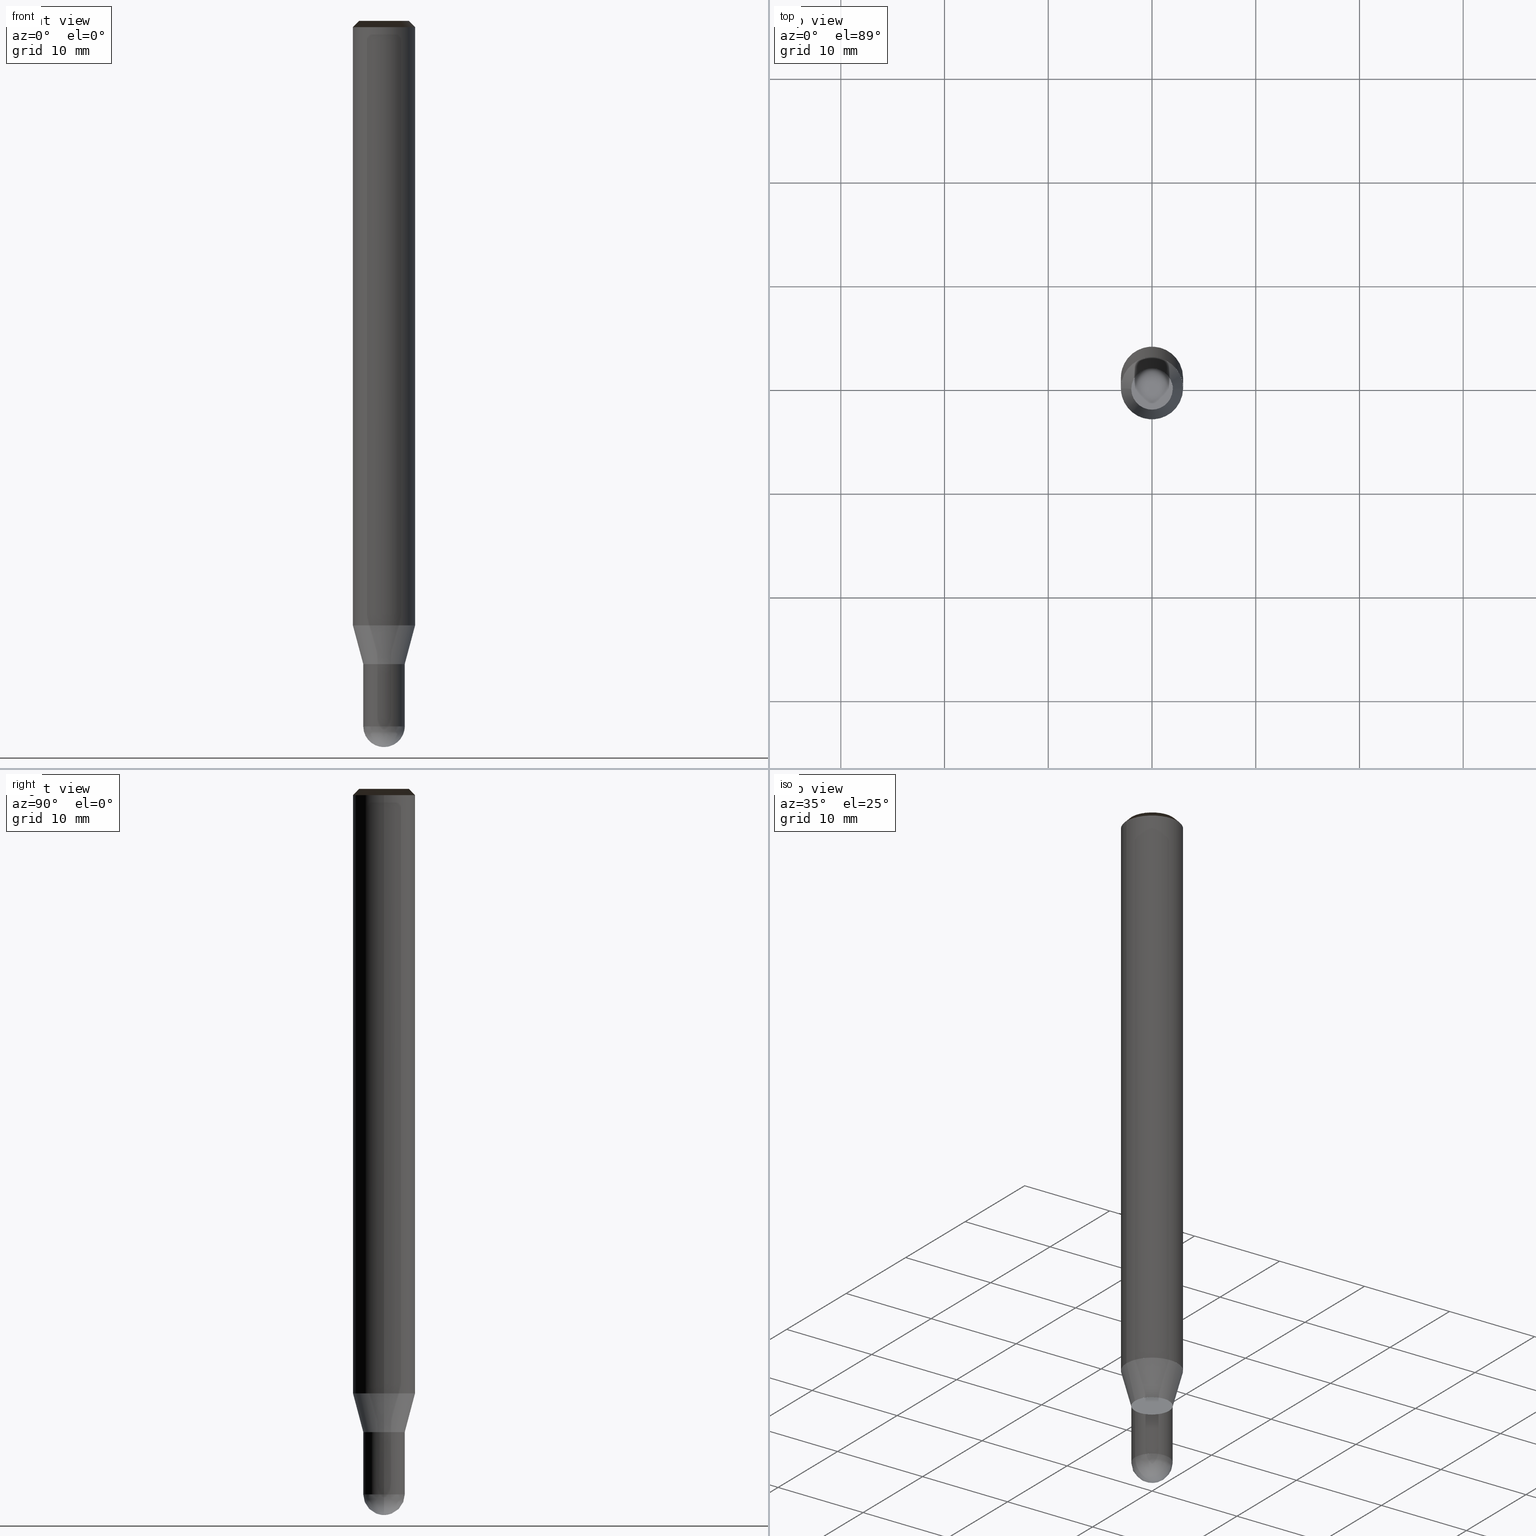
[diagram: canonical four-view strip — front | top / right | iso, engineering-drawing reading convention]
A machine part, canonical four-view strip (front | top / right | iso — engineering-drawing reading convention). The complete STEP part file that produces these views, byte-faithful:
ISO-10303-21;
HEADER;
/* Generated by ISBE GmbH (www.isbe.de) */
/* OPTION: using custom schema-name function */

FILE_DESCRIPTION(
/* description */ (''),
/* implementation_level */ '2;1');

FILE_NAME(
/*name*/ 'SHBS-2040-S06-STH',
/*time_stamp*/'2023-9-13T13:44:38',
/*author*/ ('ISBE GmbH'),
/*organization*/ ('ISBE GmbH'),
/*preprocessor_version*/ 'STEP IO v1.0',
/*originating_system*/ '',
/*authorisation*/ '');

FILE_SCHEMA (('AUTOMOTIVE_DESIGN'));
ENDSEC;

DATA;
#10=SHAPE_DEFINITION_REPRESENTATION(#11,#57);
#11=PRODUCT_DEFINITION_SHAPE('Document','',#13);
#12=PRODUCT_DEFINITION_CONTEXT('3D Mechanical Parts',#17,'design');
#13=PRODUCT_DEFINITION('A','First version',#14,#12);
#14=PRODUCT_DEFINITION_FORMATION_WITH_SPECIFIED_SOURCE('A','First version',#19,.MADE.);
#15=PRODUCT_RELATED_PRODUCT_CATEGORY('tool','tool',(#19));
#16=APPLICATION_PROTOCOL_DEFINITION('Draft International Standard', 'automotive_design',1999,#17);
#17=APPLICATION_CONTEXT('data for automotive mechanical design processes');
#18=PRODUCT_CONTEXT('3D Mechanical Parts',#17,'mechanical');
#19=PRODUCT('Document','Document','ISBE converted to STEP',(#18));
#20=(
LENGTH_UNIT()
NAMED_UNIT(*)
SI_UNIT(.MILLI.,.METRE.)
);
#21=(
NAMED_UNIT(*)
PLANE_ANGLE_UNIT()
SI_UNIT($,.RADIAN.)
);
#22=DIMENSIONAL_EXPONENTS(0.,0.,0.,0.,0.,0.,0.);
#23=PLANE_ANGLE_MEASURE_WITH_UNIT(PLANE_ANGLE_MEASURE(0.01745329252),#21);
#24=(
CONVERSION_BASED_UNIT('DEGREES',#23)
NAMED_UNIT(#22)
PLANE_ANGLE_UNIT()
);
#25=(
NAMED_UNIT(*)
SI_UNIT($,.STERADIAN.)
SOLID_ANGLE_UNIT()
);
#26=UNCERTAINTY_MEASURE_WITH_UNIT(LENGTH_MEASURE(0.001),#20, 'DISTANCE_ACCURACY_VALUE', 'Maximum model space distance between geometric entities at asserted connectivities');
#27=(
GEOMETRIC_REPRESENTATION_CONTEXT(3)
GLOBAL_UNCERTAINTY_ASSIGNED_CONTEXT((#26))
GLOBAL_UNIT_ASSIGNED_CONTEXT((#25,#24,#20))
REPRESENTATION_CONTEXT('ID1','3D')
);
#28=CARTESIAN_POINT('',(0.0,0.0,0.0));
#29=DIRECTION('',(1.0,0.0,0.0));
#30=DIRECTION('',(0.0,0.0,1.0));
#31=AXIS2_PLACEMENT_3D('',#28,#30,#29);
#32=CARTESIAN_POINT('',(0.0,0.0,0.0));
#33=DIRECTION('',(1.0,0.0,0.0));
#34=DIRECTION('',(0.0,0.0,1.0));
#35=AXIS2_PLACEMENT_3D('',#32,#34,#33);
#36=CARTESIAN_POINT('',(0.0,0.0,0.0));
#37=DIRECTION('',(1.0,0.0,0.0));
#38=DIRECTION('',(0.0,0.0,1.0));
#39=AXIS2_PLACEMENT_3D('',#36,#38,#37);
#40=CARTESIAN_POINT('',(0.0,0.0,0.0));
#41=DIRECTION('',(0.0,0.0,1.0));
#42=DIRECTION('',(1.0,0.0,0.0));
#43=AXIS2_PLACEMENT_3D('MCS',#40,#42,#41);
#44=CARTESIAN_POINT('',(0.0,0.0,58.267));
#45=DIRECTION('',(0.0,0.0,1.0));
#46=DIRECTION('',(1.0,0.0,0.0));
#47=AXIS2_PLACEMENT_3D('PCS',#44,#46,#45);
#48=CARTESIAN_POINT('',(0.0,0.0,-11.733));
#49=DIRECTION('',(0.0,0.0,1.0));
#50=DIRECTION('',(1.0,0.0,0.0));
#51=AXIS2_PLACEMENT_3D('CIP',#48,#50,#49);
#52=CARTESIAN_POINT('',(0.0,-2.0,-11.733));
#53=DIRECTION('',(0.0,0.0,1.0));
#54=DIRECTION('',(1.0,0.0,0.0));
#55=AXIS2_PLACEMENT_3D('CRP',#52,#54,#53);
#57=SHAPE_REPRESENTATION('Document',(#31,#35,#39,#43,#47,#51,#55),#27);
#58=DIRECTION('',(1.0,0.0,0.0));
#59=DIRECTION('',(0.0,0.0,1.0));
#60=CARTESIAN_POINT('',(-0.01999898138,-0.000201850881,-11.732679401865));
#61=CARTESIAN_POINT('',(-0.019371841542,-0.0611060247,-11.731972432401));
#62=CARTESIAN_POINT('',(-0.018582915878,-0.126785833558,-11.728890785501));
#63=CARTESIAN_POINT('',(-0.017578842118,-0.191239824115,-11.723758225898));
#64=CARTESIAN_POINT('',(-0.016239636919,-0.255238218366,-11.716580027646));
#65=CARTESIAN_POINT('',(-0.014453844092,-0.318872376304,-11.707363566829));
#66=CARTESIAN_POINT('',(-0.012113404118,-0.382125307653,-11.696118313982));
#67=CARTESIAN_POINT('',(-0.009113459438,-0.444948546522,-11.682855824364));
#68=CARTESIAN_POINT('',(-0.005352734971,-0.507280928068,-11.667589726078));
#69=CARTESIAN_POINT('',(-0.000734037573,-0.569054699836,-11.650335706073));
#70=CARTESIAN_POINT('',(0.004835216595,-0.630197887131,-11.631111494021));
#71=CARTESIAN_POINT('',(0.011442472882,-0.690635325679,-11.6099368441));
#72=CARTESIAN_POINT('',(0.019169517323,-0.750289163863,-11.586833514692));
#73=CARTESIAN_POINT('',(0.028091969592,-0.80907914367,-11.561825246032));
#74=CARTESIAN_POINT('',(0.03827879361,-0.866922793703,-11.534937735805));
#75=CARTESIAN_POINT('',(0.049791829162,-0.923735597184,-11.506198612746));
#76=CARTESIAN_POINT('',(0.062685347743,-0.97943116683,-11.475637408247));
#77=CARTESIAN_POINT('',(0.077005635852,-1.033921443614,-11.443285526011));
#78=CARTESIAN_POINT('',(0.092790609027,-1.087116928684,-11.409176209784));
#79=CARTESIAN_POINT('',(0.110069459952,-1.138926953383,-11.373344509194));
#80=CARTESIAN_POINT('',(0.128862343995,-1.189259989673,-11.335827243736));
#81=CARTESIAN_POINT('',(0.149180105555,-1.238024001461,-11.296662964936));
#82=CARTESIAN_POINT('',(0.171024048528,-1.285126836059,-11.255891916738));
#83=CARTESIAN_POINT('',(0.194385754122,-1.330476653977,-11.213555994151));
#84=CARTESIAN_POINT('',(0.219246949088,-1.373982394419,-11.169698700195));
#85=CARTESIAN_POINT('',(0.245579427234,-1.41555427309,-11.124365101207));
#86=CARTESIAN_POINT('',(0.273345026838,-1.455104308329,-11.077601780523));
#87=CARTESIAN_POINT('',(0.302495666221,-1.492546870951,-11.029456790616));
#88=CARTESIAN_POINT('',(0.332973439389,-1.527799252708,-10.979979603717));
#89=CARTESIAN_POINT('',(0.364710773218,-1.560782247836,-10.929221060982));
#90=CARTESIAN_POINT('',(0.397630647142,-1.591420741758,-10.877233320244));
#91=CARTESIAN_POINT('',(0.431646875815,-1.619644300717,-10.824069802421));
#92=CARTESIAN_POINT('',(0.466664454604,-1.645387755908,-10.769785136621));
#93=CARTESIAN_POINT('',(0.502579967198,-1.668591775478,-10.714435104008));
#94=CARTESIAN_POINT('',(0.539282053968,-1.689203417742,-10.658076580482));
#95=CARTESIAN_POINT('',(0.576651939074,-1.707176658955,-10.600767478235));
#96=CARTESIAN_POINT('',(0.61456401367,-1.722472889083,-10.542566686245));
#97=CARTESIAN_POINT('',(0.652886471892,-1.735061369236,-10.483534009759));
#98=CARTESIAN_POINT('',(0.691481995705,-1.74491964467,-10.423730108843));
#99=CARTESIAN_POINT('',(0.730208484048,-1.752033907651,-10.363216436047));
#100=CARTESIAN_POINT('',(0.768919821176,-1.756399304938,-10.302055173262));
#101=CARTESIAN_POINT('',(0.807466678542,-1.758020185121,-10.240309167819));
#102=CARTESIAN_POINT('',(0.845697344116,-1.756910281705,-10.178041867913));
#103=CARTESIAN_POINT('',(0.883458572612,-1.753092828452,-10.115317257403));
#104=CARTESIAN_POINT('',(0.920596449785,-1.746600604221,-10.052199790067));
#105=CARTESIAN_POINT('',(0.956957263684,-1.737475905318,-9.988754323369));
#106=CARTESIAN_POINT('',(0.992388375618,-1.725770444155,-9.925046051815));
#107=CARTESIAN_POINT('',(1.02673908347,-1.711545173848,-9.861140439961));
#108=CARTESIAN_POINT('',(1.059861470061,-1.694870039201,-9.797103155143));
#109=CARTESIAN_POINT('',(1.091611229346,-1.67582365539,-9.733));
#110=CARTESIAN_POINT('',(1.129516708706,-1.650512649074,-9.654052631579));
#111=CARTESIAN_POINT('',(1.166835553118,-1.624344419137,-9.575105263158));
#112=CARTESIAN_POINT('',(1.203548380363,-1.597332556522,-9.496157894737));
#113=CARTESIAN_POINT('',(1.23963612297,-1.56949109033,-9.417210526316));
#114=CARTESIAN_POINT('',(1.275080038118,-1.540834480531,-9.338263157895));
#115=CARTESIAN_POINT('',(1.309861717368,-1.511377610452,-9.259315789474));
#116=CARTESIAN_POINT('',(1.343963096223,-1.481135779053,-9.180368421053));
#117=CARTESIAN_POINT('',(1.377366463517,-1.450124692976,-9.101421052632));
#118=CARTESIAN_POINT('',(1.410054470606,-1.41836045839,-9.022473684211));
#119=CARTESIAN_POINT('',(1.442010140381,-1.385859572626,-8.943526315789));
#120=CARTESIAN_POINT('',(1.473216876087,-1.352638915606,-8.864578947368));
#121=CARTESIAN_POINT('',(1.503658469941,-1.318715741081,-8.785631578947));
#122=CARTESIAN_POINT('',(1.53331911155,-1.284107667665,-8.706684210526));
#123=CARTESIAN_POINT('',(1.562183396123,-1.248832669687,-8.627736842105));
#124=CARTESIAN_POINT('',(1.590236332471,-1.212909067857,-8.548789473684));
#125=CARTESIAN_POINT('',(1.617463350794,-1.176355519746,-8.469842105263));
#126=CARTESIAN_POINT('',(1.643850310247,-1.139191010103,-8.390894736842));
#127=CARTESIAN_POINT('',(1.669383506286,-1.101434840987,-8.311947368421));
#128=CARTESIAN_POINT('',(1.694049677782,-1.063106621749,-8.233));
#129=CARTESIAN_POINT('',(1.717836013913,-1.024226258843,-8.154052631579));
#130=CARTESIAN_POINT('',(1.740730160815,-0.984813945489,-8.075105263158));
#131=CARTESIAN_POINT('',(1.762720227997,-0.944890151187,-7.996157894737));
#132=CARTESIAN_POINT('',(1.783794794521,-0.90447561108,-7.917210526316));
#133=CARTESIAN_POINT('',(1.80394291493,-0.863591315192,-7.838263157895));
#134=CARTESIAN_POINT('',(1.823154124931,-0.822258497522,-7.759315789474));
#135=CARTESIAN_POINT('',(1.841418446835,-0.780498625017,-7.680368421053));
#136=CARTESIAN_POINT('',(1.858726394737,-0.738333386424,-7.601421052632));
#137=CARTESIAN_POINT('',(1.87506897944,-0.695784681021,-7.522473684211));
#138=CARTESIAN_POINT('',(1.890437713126,-0.652874607249,-7.443526315789));
#139=CARTESIAN_POINT('',(1.904824613766,-0.609625451232,-7.364578947368));
#140=CARTESIAN_POINT('',(1.918222209263,-0.566059675201,-7.285631578947));
#141=CARTESIAN_POINT('',(1.930623541333,-0.522199905832,-7.206684210526));
#142=CARTESIAN_POINT('',(1.942022169119,-0.478068922489,-7.127736842105));
#143=CARTESIAN_POINT('',(1.952412172538,-0.433689645397,-7.048789473684));
#144=CARTESIAN_POINT('',(1.961788155354,-0.389085123737,-6.969842105263));
#145=CARTESIAN_POINT('',(1.970145247979,-0.344278523676,-6.890894736842));
#146=CARTESIAN_POINT('',(1.977479110008,-0.299293116331,-6.811947368421));
#147=CARTESIAN_POINT('',(1.983785932465,-0.254152265688,-6.733));
#148=CARTESIAN_POINT('',(1.989062439788,-0.208879416466,-6.654052631579));
#149=CARTESIAN_POINT('',(1.993305891529,-0.163498081938,-6.575105263158));
#150=CARTESIAN_POINT('',(1.996514083772,-0.118031831721,-6.496157894737));
#151=CARTESIAN_POINT('',(1.998685350286,-0.072504279536,-6.417210526316));
#152=CARTESIAN_POINT('',(1.999818563384,-0.026939070941,-6.338263157895));
#153=CARTESIAN_POINT('',(1.999913134512,0.018640128948,-6.259315789474));
#154=CARTESIAN_POINT('',(1.998969014551,0.064209647749,-6.180368421053));
#155=CARTESIAN_POINT('',(1.996986693849,0.109745818107,-6.101421052632));
#156=CARTESIAN_POINT('',(1.993967201958,0.155224989987,-6.022473684211));
#157=CARTESIAN_POINT('',(1.989912107107,0.20062354296,-5.943526315789));
#158=CARTESIAN_POINT('',(1.984823515382,0.245917898463,-5.864578947368));
#159=CARTESIAN_POINT('',(1.978704069637,0.291084532055,-5.785631578947));
#160=CARTESIAN_POINT('',(1.971556948115,0.336099985626,-5.706684210526));
#161=CARTESIAN_POINT('',(1.963385862805,0.380940879585,-5.627736842105));
#162=CARTESIAN_POINT('',(1.954195057505,0.425583925003,-5.548789473684));
#163=CARTESIAN_POINT('',(1.943989305629,0.470005935706,-5.469842105263));
#164=CARTESIAN_POINT('',(1.932773907718,0.514183840318,-5.390894736842));
#165=CARTESIAN_POINT('',(1.920554688692,0.558094694245,-5.311947368421));
#166=CARTESIAN_POINT('',(1.907337994822,0.601715691591,-5.233));
#167=CARTESIAN_POINT('',(1.89313069044,0.645024177,-5.154052631579));
#168=CARTESIAN_POINT('',(1.877940154365,0.687997657426,-5.075105263158));
#169=CARTESIAN_POINT('',(1.861774276077,0.730613813816,-4.996157894737));
#170=CARTESIAN_POINT('',(1.844641451618,0.772850512696,-4.917210526316));
#171=CARTESIAN_POINT('',(1.826550579229,0.814685817672,-4.838263157895));
#172=CARTESIAN_POINT('',(1.807511054735,0.856098000822,-4.759315789474));
#173=CARTESIAN_POINT('',(1.787532766655,0.897065553979,-4.680368421053));
#174=CARTESIAN_POINT('',(1.766626091075,0.937567199902,-4.601421052632));
#175=CARTESIAN_POINT('',(1.744801886257,0.977581903328,-4.522473684211));
#176=CARTESIAN_POINT('',(1.722071486995,1.017088881897,-4.443526315789));
#177=CARTESIAN_POINT('',(1.698446698735,1.056067616944,-4.364578947368));
#178=CARTESIAN_POINT('',(1.673939791437,1.094497864158,-4.285631578947));
#179=CARTESIAN_POINT('',(1.648563493207,1.132359664094,-4.206684210526));
#180=CARTESIAN_POINT('',(1.622330983685,1.16963335254,-4.127736842105));
#181=CARTESIAN_POINT('',(1.595255887201,1.206299570733,-4.048789473684));
#182=CARTESIAN_POINT('',(1.567352265694,1.242339275409,-3.969842105263));
#183=CARTESIAN_POINT('',(1.538634611417,1.277733748693,-3.890894736842));
#184=CARTESIAN_POINT('',(1.509117839403,1.312464607826,-3.811947368421));
#185=CARTESIAN_POINT('',(1.478817279722,1.346513814707,-3.733));
#186=CARTESIAN_POINT('',(0.01999898138,0.000201850881,-11.732679401865));
#187=CARTESIAN_POINT('',(0.019371841542,0.0611060247,-11.731972432401));
#188=CARTESIAN_POINT('',(0.018582915878,0.126785833558,-11.728890785501));
#189=CARTESIAN_POINT('',(0.017578842118,0.191239824115,-11.723758225898));
#190=CARTESIAN_POINT('',(0.016239636919,0.255238218366,-11.716580027646));
#191=CARTESIAN_POINT('',(0.014453844092,0.318872376304,-11.707363566829));
#192=CARTESIAN_POINT('',(0.012113404118,0.382125307653,-11.696118313982));
#193=CARTESIAN_POINT('',(0.009113459438,0.444948546522,-11.682855824364));
#194=CARTESIAN_POINT('',(0.005352734971,0.507280928068,-11.667589726078));
#195=CARTESIAN_POINT('',(0.000734037573,0.569054699836,-11.650335706073));
#196=CARTESIAN_POINT('',(-0.004835216595,0.630197887131,-11.631111494021));
#197=CARTESIAN_POINT('',(-0.011442472882,0.690635325679,-11.6099368441));
#198=CARTESIAN_POINT('',(-0.019169517323,0.750289163863,-11.586833514692));
#199=CARTESIAN_POINT('',(-0.028091969592,0.80907914367,-11.561825246032));
#200=CARTESIAN_POINT('',(-0.03827879361,0.866922793703,-11.534937735805));
#201=CARTESIAN_POINT('',(-0.049791829162,0.923735597184,-11.506198612746));
#202=CARTESIAN_POINT('',(-0.062685347743,0.97943116683,-11.475637408247));
#203=CARTESIAN_POINT('',(-0.077005635852,1.033921443614,-11.443285526011));
#204=CARTESIAN_POINT('',(-0.092790609027,1.087116928684,-11.409176209784));
#205=CARTESIAN_POINT('',(-0.110069459952,1.138926953383,-11.373344509194));
#206=CARTESIAN_POINT('',(-0.128862343995,1.189259989673,-11.335827243736));
#207=CARTESIAN_POINT('',(-0.149180105555,1.238024001461,-11.296662964936));
#208=CARTESIAN_POINT('',(-0.171024048528,1.285126836059,-11.255891916738));
#209=CARTESIAN_POINT('',(-0.194385754122,1.330476653977,-11.213555994151));
#210=CARTESIAN_POINT('',(-0.219246949088,1.373982394419,-11.169698700195));
#211=CARTESIAN_POINT('',(-0.245579427234,1.41555427309,-11.124365101207));
#212=CARTESIAN_POINT('',(-0.273345026838,1.455104308329,-11.077601780523));
#213=CARTESIAN_POINT('',(-0.302495666221,1.492546870951,-11.029456790616));
#214=CARTESIAN_POINT('',(-0.332973439389,1.527799252708,-10.979979603717));
#215=CARTESIAN_POINT('',(-0.364710773218,1.560782247836,-10.929221060982));
#216=CARTESIAN_POINT('',(-0.397630647142,1.591420741758,-10.877233320244));
#217=CARTESIAN_POINT('',(-0.431646875815,1.619644300717,-10.824069802421));
#218=CARTESIAN_POINT('',(-0.466664454604,1.645387755908,-10.769785136621));
#219=CARTESIAN_POINT('',(-0.502579967198,1.668591775478,-10.714435104008));
#220=CARTESIAN_POINT('',(-0.539282053968,1.689203417742,-10.658076580482));
#221=CARTESIAN_POINT('',(-0.576651939074,1.707176658955,-10.600767478235));
#222=CARTESIAN_POINT('',(-0.61456401367,1.722472889083,-10.542566686245));
#223=CARTESIAN_POINT('',(-0.652886471892,1.735061369236,-10.483534009759));
#224=CARTESIAN_POINT('',(-0.691481995705,1.74491964467,-10.423730108843));
#225=CARTESIAN_POINT('',(-0.730208484048,1.752033907651,-10.363216436047));
#226=CARTESIAN_POINT('',(-0.768919821176,1.756399304938,-10.302055173262));
#227=CARTESIAN_POINT('',(-0.807466678542,1.758020185121,-10.240309167819));
#228=CARTESIAN_POINT('',(-0.845697344116,1.756910281705,-10.178041867913));
#229=CARTESIAN_POINT('',(-0.883458572612,1.753092828452,-10.115317257403));
#230=CARTESIAN_POINT('',(-0.920596449785,1.746600604221,-10.052199790067));
#231=CARTESIAN_POINT('',(-0.956957263684,1.737475905318,-9.988754323369));
#232=CARTESIAN_POINT('',(-0.992388375618,1.725770444155,-9.925046051815));
#233=CARTESIAN_POINT('',(-1.02673908347,1.711545173848,-9.861140439961));
#234=CARTESIAN_POINT('',(-1.059861470061,1.694870039201,-9.797103155143));
#235=CARTESIAN_POINT('',(-1.091611229346,1.67582365539,-9.733));
#236=CARTESIAN_POINT('',(-1.129516708706,1.650512649074,-9.654052631579));
#237=CARTESIAN_POINT('',(-1.166835553118,1.624344419137,-9.575105263158));
#238=CARTESIAN_POINT('',(-1.203548380363,1.597332556522,-9.496157894737));
#239=CARTESIAN_POINT('',(-1.23963612297,1.56949109033,-9.417210526316));
#240=CARTESIAN_POINT('',(-1.275080038118,1.540834480531,-9.338263157895));
#241=CARTESIAN_POINT('',(-1.309861717368,1.511377610452,-9.259315789474));
#242=CARTESIAN_POINT('',(-1.343963096223,1.481135779053,-9.180368421053));
#243=CARTESIAN_POINT('',(-1.377366463517,1.450124692976,-9.101421052632));
#244=CARTESIAN_POINT('',(-1.410054470606,1.41836045839,-9.022473684211));
#245=CARTESIAN_POINT('',(-1.442010140381,1.385859572626,-8.943526315789));
#246=CARTESIAN_POINT('',(-1.473216876087,1.352638915606,-8.864578947368));
#247=CARTESIAN_POINT('',(-1.503658469941,1.318715741081,-8.785631578947));
#248=CARTESIAN_POINT('',(-1.53331911155,1.284107667665,-8.706684210526));
#249=CARTESIAN_POINT('',(-1.562183396123,1.248832669687,-8.627736842105));
#250=CARTESIAN_POINT('',(-1.590236332471,1.212909067857,-8.548789473684));
#251=CARTESIAN_POINT('',(-1.617463350794,1.176355519746,-8.469842105263));
#252=CARTESIAN_POINT('',(-1.643850310247,1.139191010103,-8.390894736842));
#253=CARTESIAN_POINT('',(-1.669383506286,1.101434840987,-8.311947368421));
#254=CARTESIAN_POINT('',(-1.694049677782,1.063106621749,-8.233));
#255=CARTESIAN_POINT('',(-1.717836013913,1.024226258843,-8.154052631579));
#256=CARTESIAN_POINT('',(-1.740730160815,0.984813945489,-8.075105263158));
#257=CARTESIAN_POINT('',(-1.762720227997,0.944890151187,-7.996157894737));
#258=CARTESIAN_POINT('',(-1.783794794521,0.90447561108,-7.917210526316));
#259=CARTESIAN_POINT('',(-1.80394291493,0.863591315192,-7.838263157895));
#260=CARTESIAN_POINT('',(-1.823154124931,0.822258497522,-7.759315789474));
#261=CARTESIAN_POINT('',(-1.841418446835,0.780498625017,-7.680368421053));
#262=CARTESIAN_POINT('',(-1.858726394737,0.738333386424,-7.601421052632));
#263=CARTESIAN_POINT('',(-1.87506897944,0.695784681021,-7.522473684211));
#264=CARTESIAN_POINT('',(-1.890437713126,0.652874607249,-7.443526315789));
#265=CARTESIAN_POINT('',(-1.904824613766,0.609625451232,-7.364578947368));
#266=CARTESIAN_POINT('',(-1.918222209263,0.566059675201,-7.285631578947));
#267=CARTESIAN_POINT('',(-1.930623541333,0.522199905832,-7.206684210526));
#268=CARTESIAN_POINT('',(-1.942022169119,0.478068922489,-7.127736842105));
#269=CARTESIAN_POINT('',(-1.952412172538,0.433689645397,-7.048789473684));
#270=CARTESIAN_POINT('',(-1.961788155354,0.389085123737,-6.969842105263));
#271=CARTESIAN_POINT('',(-1.970145247979,0.344278523676,-6.890894736842));
#272=CARTESIAN_POINT('',(-1.977479110008,0.299293116331,-6.811947368421));
#273=CARTESIAN_POINT('',(-1.983785932465,0.254152265688,-6.733));
#274=CARTESIAN_POINT('',(-1.989062439788,0.208879416466,-6.654052631579));
#275=CARTESIAN_POINT('',(-1.993305891529,0.163498081938,-6.575105263158));
#276=CARTESIAN_POINT('',(-1.996514083772,0.118031831721,-6.496157894737));
#277=CARTESIAN_POINT('',(-1.998685350286,0.072504279536,-6.417210526316));
#278=CARTESIAN_POINT('',(-1.999818563384,0.026939070941,-6.338263157895));
#279=CARTESIAN_POINT('',(-1.999913134512,-0.018640128948,-6.259315789474));
#280=CARTESIAN_POINT('',(-1.998969014551,-0.064209647749,-6.180368421053));
#281=CARTESIAN_POINT('',(-1.996986693849,-0.109745818107,-6.101421052632));
#282=CARTESIAN_POINT('',(-1.993967201958,-0.155224989987,-6.022473684211));
#283=CARTESIAN_POINT('',(-1.989912107107,-0.20062354296,-5.943526315789));
#284=CARTESIAN_POINT('',(-1.984823515382,-0.245917898463,-5.864578947368));
#285=CARTESIAN_POINT('',(-1.978704069637,-0.291084532055,-5.785631578947));
#286=CARTESIAN_POINT('',(-1.971556948115,-0.336099985626,-5.706684210526));
#287=CARTESIAN_POINT('',(-1.963385862805,-0.380940879585,-5.627736842105));
#288=CARTESIAN_POINT('',(-1.954195057505,-0.425583925003,-5.548789473684));
#289=CARTESIAN_POINT('',(-1.943989305629,-0.470005935706,-5.469842105263));
#290=CARTESIAN_POINT('',(-1.932773907718,-0.514183840318,-5.390894736842));
#291=CARTESIAN_POINT('',(-1.920554688692,-0.558094694245,-5.311947368421));
#292=CARTESIAN_POINT('',(-1.907337994822,-0.601715691591,-5.233));
#293=CARTESIAN_POINT('',(-1.89313069044,-0.645024177,-5.154052631579));
#294=CARTESIAN_POINT('',(-1.877940154365,-0.687997657426,-5.075105263158));
#295=CARTESIAN_POINT('',(-1.861774276077,-0.730613813816,-4.996157894737));
#296=CARTESIAN_POINT('',(-1.844641451618,-0.772850512696,-4.917210526316));
#297=CARTESIAN_POINT('',(-1.826550579229,-0.814685817672,-4.838263157895));
#298=CARTESIAN_POINT('',(-1.807511054735,-0.856098000822,-4.759315789474));
#299=CARTESIAN_POINT('',(-1.787532766655,-0.897065553979,-4.680368421053));
#300=CARTESIAN_POINT('',(-1.766626091075,-0.937567199902,-4.601421052632));
#301=CARTESIAN_POINT('',(-1.744801886257,-0.977581903328,-4.522473684211));
#302=CARTESIAN_POINT('',(-1.722071486995,-1.017088881897,-4.443526315789));
#303=CARTESIAN_POINT('',(-1.698446698735,-1.056067616944,-4.364578947368));
#304=CARTESIAN_POINT('',(-1.673939791437,-1.094497864158,-4.285631578947));
#305=CARTESIAN_POINT('',(-1.648563493207,-1.132359664093,-4.206684210526));
#306=CARTESIAN_POINT('',(-1.622330983685,-1.16963335254,-4.127736842105));
#307=CARTESIAN_POINT('',(-1.595255887201,-1.206299570733,-4.048789473684));
#308=CARTESIAN_POINT('',(-1.567352265694,-1.242339275409,-3.969842105263));
#309=CARTESIAN_POINT('',(-1.538634611417,-1.277733748693,-3.890894736842));
#310=CARTESIAN_POINT('',(-1.509117839403,-1.312464607826,-3.811947368421));
#311=CARTESIAN_POINT('',(-1.478817279722,-1.346513814707,-3.733));
#312=CARTESIAN_POINT('',(0.0,0.0,-11.733));
#313=CARTESIAN_POINT('',(2.0,0.0,-11.733));
#314=CARTESIAN_POINT('',(2.0,2.0,-11.733));
#315=CARTESIAN_POINT('',(0.0,2.0,-11.733));
#316=CARTESIAN_POINT('',(-2.0,2.0,-11.733));
#317=CARTESIAN_POINT('',(-2.0,0.0,-11.733));
#318=CARTESIAN_POINT('',(2.0,0.0,-9.733));
#319=CARTESIAN_POINT('',(2.0,2.0,-9.733));
#320=CARTESIAN_POINT('',(0.0,2.0,-9.733));
#321=CARTESIAN_POINT('',(-2.0,2.0,-9.733));
#322=CARTESIAN_POINT('',(-2.0,0.0,-9.733));
#323=CARTESIAN_POINT('',(2.0,0.0,-3.733));
#324=CARTESIAN_POINT('',(2.0,2.0,-3.733));
#325=CARTESIAN_POINT('',(0.0,2.0,-3.733));
#326=CARTESIAN_POINT('',(-2.0,2.0,-3.733));
#327=CARTESIAN_POINT('',(-2.0,0.0,-3.733));
#328=CARTESIAN_POINT('',(0.0,0.0,-3.733));
#329=CARTESIAN_POINT('',(-2.0,-2.0,-11.733));
#330=CARTESIAN_POINT('',(0.0,-2.0,-11.733));
#331=CARTESIAN_POINT('',(2.0,-2.0,-11.733));
#332=CARTESIAN_POINT('',(-2.0,-2.0,-9.733));
#333=CARTESIAN_POINT('',(0.0,-2.0,-9.733));
#334=CARTESIAN_POINT('',(2.0,-2.0,-9.733));
#335=CARTESIAN_POINT('',(-2.0,-2.0,-3.733));
#336=CARTESIAN_POINT('',(0.0,-2.0,-3.733));
#337=CARTESIAN_POINT('',(2.0,-2.0,-3.733));
#338=CARTESIAN_POINT('',(2.0,0.0,-3.732050807569));
#339=CARTESIAN_POINT('',(2.0,2.0,-3.732050807569));
#340=CARTESIAN_POINT('',(0.0,2.0,-3.732050807569));
#341=CARTESIAN_POINT('',(-2.0,2.0,-3.732050807569));
#342=CARTESIAN_POINT('',(-2.0,0.0,-3.732050807569));
#343=CARTESIAN_POINT('',(3.0,0.0,-0.0));
#344=CARTESIAN_POINT('',(3.0,3.0,-0.0));
#345=CARTESIAN_POINT('',(0.0,3.0,-0.0));
#346=CARTESIAN_POINT('',(-3.0,3.0,-0.0));
#347=CARTESIAN_POINT('',(-3.0,0.0,-0.0));
#348=CARTESIAN_POINT('',(3.0,0.0,57.667));
#349=CARTESIAN_POINT('',(3.0,3.0,57.667));
#350=CARTESIAN_POINT('',(0.0,3.0,57.667));
#351=CARTESIAN_POINT('',(-3.0,3.0,57.667));
#352=CARTESIAN_POINT('',(-3.0,0.0,57.667));
#353=CARTESIAN_POINT('',(2.4,0.0,58.267));
#354=CARTESIAN_POINT('',(2.4,2.4,58.267));
#355=CARTESIAN_POINT('',(0.0,2.4,58.267));
#356=CARTESIAN_POINT('',(-2.4,2.4,58.267));
#357=CARTESIAN_POINT('',(-2.4,0.0,58.267));
#358=CARTESIAN_POINT('',(0.0,0.0,58.267));
#359=CARTESIAN_POINT('',(-2.0,-2.0,-3.732050807569));
#360=CARTESIAN_POINT('',(0.0,-2.0,-3.732050807569));
#361=CARTESIAN_POINT('',(2.0,-2.0,-3.732050807569));
#362=CARTESIAN_POINT('',(-3.0,-3.0,-0.0));
#363=CARTESIAN_POINT('',(0.0,-3.0,-0.0));
#364=CARTESIAN_POINT('',(3.0,-3.0,-0.0));
#365=CARTESIAN_POINT('',(-3.0,-3.0,57.667));
#366=CARTESIAN_POINT('',(0.0,-3.0,57.667));
#367=CARTESIAN_POINT('',(3.0,-3.0,57.667));
#368=CARTESIAN_POINT('',(-2.4,-2.4,58.267));
#369=CARTESIAN_POINT('',(0.0,-2.4,58.267));
#370=CARTESIAN_POINT('',(2.4,-2.4,58.267));
#371=(
BOUNDED_CURVE()
B_SPLINE_CURVE(1,(#60,#61,#62,#63,#64,#65,#66,#67,#68,#69,#70,#71,#72,#73,#74,#75,#76,#77,#78,#79,#80,#81,#82,#83,#84,#85,#86,#87,#88,#89,#90,#91,#92,#93,#94,#95,#96,#97,#98,#99,#100,#101,#102,#103,#104,#105,#106,#107,#108,#109,#110,#111,#112,#113,#114,#115,#116,#117,#118,#119,#120,#121,#122,#123,#124,#125,#126,#127,#128,#129,#130,#131,#132,#133,#134,#135,#136,#137,#138,#139,#140,#141,#142,#143,#144,#145,#146,#147,#148,#149,#150,#151,#152,#153,#154,#155,#156,#157,#158,#159,#160,#161,#162,#163,#164,#165,#166,#167,#168,#169,#170,#171,#172,#173,#174,#175,#176,#177,#178,#179,#180,#181,#182,#183,#184,#185),.UNSPECIFIED.,.F.,.F.)
B_SPLINE_CURVE_WITH_KNOTS((2,1,1,1,1,1,1,1,1,1,1,1,1,1,1,1,1,1,1,1,1,1,1,1,1,1,1,1,1,1,1,1,1,1,1,1,1,1,1,1,1,1,1,1,1,1,1,1,1,1,1,1,1,1,1,1,1,1,1,1,1,1,1,1,1,1,1,1,1,1,1,1,1,1,1,1,1,1,1,1,1,1,1,1,1,1,1,1,1,1,1,1,1,1,1,1,1,1,1,1,1,1,1,1,1,1,1,1,1,1,1,1,1,1,1,1,1,1,1,1,1,1,1,1,1,2),
(0.0,0.005936396935,0.012345012848,0.018647302877,0.024925013707,0.031193885123,0.037459292258,0.043723779076,0.049988925379,0.056255973938,0.062526086153,0.068800460745,0.075080393048,0.08136730458,0.087662755496,0.093968445877,0.100286208851,0.106617997321,0.112965865418,0.119331945556,0.125718421872,0.132127500762,0.138561379245,0.145022211909,0.151512077152,0.158032943459,0.164586636422,0.171174807154,0.177798902711,0.184460139049,0.191159476984,0.197897601519,0.204674904826,0.21149147308,0.218347077268,0.225241167996,0.232172874288,0.239141006265,0.246144061578,0.253180235415,0.260247433847,0.267343290304,0.274465184889,0.281610266285,0.288775475956,0.295957574362,0.303153168913,0.310358743348,0.317570688281,0.324785332612,0.33366973613,0.342554139648,0.351438543167,0.360322946685,0.369207350203,0.378091753722,0.38697615724,0.395860560758,0.404744964276,0.413629367795,0.422513771313,0.431398174831,0.440282578349,0.449166981868,0.458051385386,0.466935788904,0.475820192422,0.484704595941,0.493588999459,0.502473402977,0.511357806495,0.520242210014,0.529126613532,0.53801101705,0.546895420569,0.555779824087,0.564664227605,0.573548631123,0.582433034642,0.59131743816,0.600201841678,0.609086245196,0.617970648715,0.626855052233,0.635739455751,0.644623859269,0.653508262788,0.662392666306,0.671277069824,0.680161473342,0.689045876861,0.697930280379,0.706814683897,0.715699087416,0.724583490934,0.733467894452,0.74235229797,0.751236701489,0.760121105007,0.769005508525,0.777889912043,0.786774315562,0.79565871908,0.804543122598,0.813427526116,0.822311929635,0.831196333153,0.840080736671,0.84896514019,0.857849543708,0.866733947226,0.875618350744,0.884502754263,0.893387157781,0.902271561299,0.911155964817,0.920040368336,0.928924771854,0.937809175372,0.94669357889,0.955577982409,0.964462385927,0.973346789445,0.982231192963,0.991115596482,1.0),.UNSPECIFIED.)
CURVE()
GEOMETRIC_REPRESENTATION_ITEM()
RATIONAL_B_SPLINE_CURVE((1.0,1.0,1.0,1.0,1.0,1.0,1.0,1.0,1.0,1.0,1.0,1.0,1.0,1.0,1.0,1.0,1.0,1.0,1.0,1.0,1.0,1.0,1.0,1.0,1.0,1.0,1.0,1.0,1.0,1.0,1.0,1.0,1.0,1.0,1.0,1.0,1.0,1.0,1.0,1.0,1.0,1.0,1.0,1.0,1.0,1.0,1.0,1.0,1.0,1.0,1.0,1.0,1.0,1.0,1.0,1.0,1.0,1.0,1.0,1.0,1.0,1.0,1.0,1.0,1.0,1.0,1.0,1.0,1.0,1.0,1.0,1.0,1.0,1.0,1.0,1.0,1.0,1.0,1.0,1.0,1.0,1.0,1.0,1.0,1.0,1.0,1.0,1.0,1.0,1.0,1.0,1.0,1.0,1.0,1.0,1.0,1.0,1.0,1.0,1.0,1.0,1.0,1.0,1.0,1.0,1.0,1.0,1.0,1.0,1.0,1.0,1.0,1.0,1.0,1.0,1.0,1.0,1.0,1.0,1.0,1.0,1.0,1.0,1.0,1.0,1.0))
REPRESENTATION_ITEM('')
);
#372=(
BOUNDED_CURVE()
B_SPLINE_CURVE(1,(#186,#187,#188,#189,#190,#191,#192,#193,#194,#195,#196,#197,#198,#199,#200,#201,#202,#203,#204,#205,#206,#207,#208,#209,#210,#211,#212,#213,#214,#215,#216,#217,#218,#219,#220,#221,#222,#223,#224,#225,#226,#227,#228,#229,#230,#231,#232,#233,#234,#235,#236,#237,#238,#239,#240,#241,#242,#243,#244,#245,#246,#247,#248,#249,#250,#251,#252,#253,#254,#255,#256,#257,#258,#259,#260,#261,#262,#263,#264,#265,#266,#267,#268,#269,#270,#271,#272,#273,#274,#275,#276,#277,#278,#279,#280,#281,#282,#283,#284,#285,#286,#287,#288,#289,#290,#291,#292,#293,#294,#295,#296,#297,#298,#299,#300,#301,#302,#303,#304,#305,#306,#307,#308,#309,#310,#311),.UNSPECIFIED.,.F.,.F.)
B_SPLINE_CURVE_WITH_KNOTS((2,1,1,1,1,1,1,1,1,1,1,1,1,1,1,1,1,1,1,1,1,1,1,1,1,1,1,1,1,1,1,1,1,1,1,1,1,1,1,1,1,1,1,1,1,1,1,1,1,1,1,1,1,1,1,1,1,1,1,1,1,1,1,1,1,1,1,1,1,1,1,1,1,1,1,1,1,1,1,1,1,1,1,1,1,1,1,1,1,1,1,1,1,1,1,1,1,1,1,1,1,1,1,1,1,1,1,1,1,1,1,1,1,1,1,1,1,1,1,1,1,1,1,1,1,2),
(0.0,0.005936396935,0.012345012848,0.018647302877,0.024925013707,0.031193885123,0.037459292258,0.043723779076,0.049988925379,0.056255973938,0.062526086153,0.068800460745,0.075080393048,0.08136730458,0.087662755496,0.093968445877,0.100286208851,0.106617997321,0.112965865418,0.119331945556,0.125718421872,0.132127500762,0.138561379245,0.145022211909,0.151512077152,0.158032943459,0.164586636422,0.171174807154,0.177798902711,0.184460139049,0.191159476984,0.197897601519,0.204674904826,0.21149147308,0.218347077268,0.225241167996,0.232172874288,0.239141006265,0.246144061578,0.253180235415,0.260247433847,0.267343290304,0.274465184889,0.281610266285,0.288775475956,0.295957574362,0.303153168913,0.310358743348,0.317570688281,0.324785332612,0.33366973613,0.342554139648,0.351438543167,0.360322946685,0.369207350203,0.378091753722,0.38697615724,0.395860560758,0.404744964276,0.413629367795,0.422513771313,0.431398174831,0.440282578349,0.449166981868,0.458051385386,0.466935788904,0.475820192422,0.484704595941,0.493588999459,0.502473402977,0.511357806495,0.520242210014,0.529126613532,0.53801101705,0.546895420569,0.555779824087,0.564664227605,0.573548631123,0.582433034642,0.59131743816,0.600201841678,0.609086245196,0.617970648715,0.626855052233,0.635739455751,0.644623859269,0.653508262788,0.662392666306,0.671277069824,0.680161473342,0.689045876861,0.697930280379,0.706814683897,0.715699087416,0.724583490934,0.733467894452,0.74235229797,0.751236701489,0.760121105007,0.769005508525,0.777889912043,0.786774315562,0.79565871908,0.804543122598,0.813427526116,0.822311929635,0.831196333153,0.840080736671,0.84896514019,0.857849543708,0.866733947226,0.875618350744,0.884502754263,0.893387157781,0.902271561299,0.911155964817,0.920040368336,0.928924771854,0.937809175372,0.94669357889,0.955577982409,0.964462385927,0.973346789445,0.982231192963,0.991115596482,1.0),.UNSPECIFIED.)
CURVE()
GEOMETRIC_REPRESENTATION_ITEM()
RATIONAL_B_SPLINE_CURVE((1.0,1.0,1.0,1.0,1.0,1.0,1.0,1.0,1.0,1.0,1.0,1.0,1.0,1.0,1.0,1.0,1.0,1.0,1.0,1.0,1.0,1.0,1.0,1.0,1.0,1.0,1.0,1.0,1.0,1.0,1.0,1.0,1.0,1.0,1.0,1.0,1.0,1.0,1.0,1.0,1.0,1.0,1.0,1.0,1.0,1.0,1.0,1.0,1.0,1.0,1.0,1.0,1.0,1.0,1.0,1.0,1.0,1.0,1.0,1.0,1.0,1.0,1.0,1.0,1.0,1.0,1.0,1.0,1.0,1.0,1.0,1.0,1.0,1.0,1.0,1.0,1.0,1.0,1.0,1.0,1.0,1.0,1.0,1.0,1.0,1.0,1.0,1.0,1.0,1.0,1.0,1.0,1.0,1.0,1.0,1.0,1.0,1.0,1.0,1.0,1.0,1.0,1.0,1.0,1.0,1.0,1.0,1.0,1.0,1.0,1.0,1.0,1.0,1.0,1.0,1.0,1.0,1.0,1.0,1.0,1.0,1.0,1.0,1.0,1.0,1.0))
REPRESENTATION_ITEM('')
);
#373=SHAPE_REPRESENTATION_RELATIONSHIP('','',#57,#374);
#374=GEOMETRICALLY_BOUNDED_WIREFRAME_SHAPE_REPRESENTATION('Curves',(#375,#31),#27);
#375=GEOMETRIC_CURVE_SET('CurveSet',(#371,#372));
#376=(
BOUNDED_SURFACE()
B_SPLINE_SURFACE(2,2,(
(#312,#312,#312,#312,#312),
(#313,#314,#315,#316,#317),
(#318,#319,#320,#321,#322)
), .UNSPECIFIED.,.F.,.F.,.F.)
B_SPLINE_SURFACE_WITH_KNOTS((3,3),(3,2,3),(
0.0,1.0),(
0.0,0.5,1.0), .UNSPECIFIED.)
GEOMETRIC_REPRESENTATION_ITEM()
RATIONAL_B_SPLINE_SURFACE(((1.0,0.707106781187,1.0,0.707106781187,1.0),
(0.707106781187,0.5,0.707106781187,0.5,0.707106781187),
(1.0,0.707106781187,1.0,0.707106781187,1.0)
))
REPRESENTATION_ITEM('')
SURFACE()
);
#377=(
BOUNDED_CURVE()
B_SPLINE_CURVE(2,(#318,#319,#320,#321,#322),.UNSPECIFIED.,.F.,.F.)
B_SPLINE_CURVE_WITH_KNOTS((3,2,3),
(0.0,0.5,1.0),.UNSPECIFIED.)
CURVE()
GEOMETRIC_REPRESENTATION_ITEM()
RATIONAL_B_SPLINE_CURVE((1.0,0.707106781187,1.0,0.707106781187,1.0))
REPRESENTATION_ITEM('')
);
#378=(
BOUNDED_CURVE()
B_SPLINE_CURVE(2,(#322,#317,#312),.UNSPECIFIED.,.F.,.F.)
B_SPLINE_CURVE_WITH_KNOTS((3,3),
(0.0,1.0),.UNSPECIFIED.)
CURVE()
GEOMETRIC_REPRESENTATION_ITEM()
RATIONAL_B_SPLINE_CURVE((1.0,0.707106781187,1.0))
REPRESENTATION_ITEM('')
);
#379=(
BOUNDED_CURVE()
B_SPLINE_CURVE(2,(#312,#313,#318),.UNSPECIFIED.,.F.,.F.)
B_SPLINE_CURVE_WITH_KNOTS((3,3),
(0.0,1.0),.UNSPECIFIED.)
CURVE()
GEOMETRIC_REPRESENTATION_ITEM()
RATIONAL_B_SPLINE_CURVE((1.0,0.707106781187,1.0))
REPRESENTATION_ITEM('')
);
#380=VERTEX_POINT('',#312);
#381=VERTEX_POINT('',#318);
#382=VERTEX_POINT('',#322);
#383=EDGE_CURVE('',#381,#382,#377,.T.);
#384=EDGE_CURVE('',#382,#380,#378,.T.);
#385=EDGE_CURVE('',#380,#381,#379,.T.);
#386=ORIENTED_EDGE('',*,*,#383,.T.);
#387=ORIENTED_EDGE('',*,*,#384,.T.);
#388=ORIENTED_EDGE('',*,*,#385,.T.);
#389=EDGE_LOOP('',(#386,#387,#388));
#390=FACE_OUTER_BOUND('',#389,.T.);
#391=ADVANCED_FACE('',(#390),#376,.T.);
#392=(
BOUNDED_SURFACE()
B_SPLINE_SURFACE(1,2,(
(#318,#319,#320,#321,#322),
(#323,#324,#325,#326,#327)
), .UNSPECIFIED.,.F.,.F.,.F.)
B_SPLINE_SURFACE_WITH_KNOTS((2,2),(3,2,3),(
0.0,1.0),(
0.0,0.5,1.0), .UNSPECIFIED.)
GEOMETRIC_REPRESENTATION_ITEM()
RATIONAL_B_SPLINE_SURFACE(((1.0,0.707106781187,1.0,0.707106781187,1.0),
(1.0,0.707106781187,1.0,0.707106781187,1.0)
))
REPRESENTATION_ITEM('')
SURFACE()
);
#393=(
BOUNDED_CURVE()
B_SPLINE_CURVE(2,(#323,#324,#325,#326,#327),.UNSPECIFIED.,.F.,.F.)
B_SPLINE_CURVE_WITH_KNOTS((3,2,3),
(0.0,0.5,1.0),.UNSPECIFIED.)
CURVE()
GEOMETRIC_REPRESENTATION_ITEM()
RATIONAL_B_SPLINE_CURVE((1.0,0.707106781187,1.0,0.707106781187,1.0))
REPRESENTATION_ITEM('')
);
#394=(
BOUNDED_CURVE()
B_SPLINE_CURVE(1,(#327,#322),.UNSPECIFIED.,.F.,.F.)
B_SPLINE_CURVE_WITH_KNOTS((2,2),
(0.0,1.0),.UNSPECIFIED.)
CURVE()
GEOMETRIC_REPRESENTATION_ITEM()
RATIONAL_B_SPLINE_CURVE((1.0,1.0))
REPRESENTATION_ITEM('')
);
#395=(
BOUNDED_CURVE()
B_SPLINE_CURVE(2,(#322,#321,#320,#319,#318),.UNSPECIFIED.,.F.,.F.)
B_SPLINE_CURVE_WITH_KNOTS((3,2,3),
(0.0,0.5,1.0),.UNSPECIFIED.)
CURVE()
GEOMETRIC_REPRESENTATION_ITEM()
RATIONAL_B_SPLINE_CURVE((1.0,0.707106781187,1.0,0.707106781187,1.0))
REPRESENTATION_ITEM('')
);
#396=(
BOUNDED_CURVE()
B_SPLINE_CURVE(1,(#318,#323),.UNSPECIFIED.,.F.,.F.)
B_SPLINE_CURVE_WITH_KNOTS((2,2),
(0.0,1.0),.UNSPECIFIED.)
CURVE()
GEOMETRIC_REPRESENTATION_ITEM()
RATIONAL_B_SPLINE_CURVE((1.0,1.0))
REPRESENTATION_ITEM('')
);
#397=VERTEX_POINT('',#318);
#398=VERTEX_POINT('',#322);
#399=VERTEX_POINT('',#323);
#400=VERTEX_POINT('',#327);
#401=EDGE_CURVE('',#399,#400,#393,.T.);
#402=EDGE_CURVE('',#400,#398,#394,.T.);
#403=EDGE_CURVE('',#398,#397,#395,.T.);
#404=EDGE_CURVE('',#397,#399,#396,.T.);
#405=ORIENTED_EDGE('',*,*,#401,.T.);
#406=ORIENTED_EDGE('',*,*,#402,.T.);
#407=ORIENTED_EDGE('',*,*,#403,.T.);
#408=ORIENTED_EDGE('',*,*,#404,.T.);
#409=EDGE_LOOP('',(#405,#406,#407,#408));
#410=FACE_OUTER_BOUND('',#409,.T.);
#411=ADVANCED_FACE('',(#410),#392,.T.);
#412=(
BOUNDED_SURFACE()
B_SPLINE_SURFACE(1,2,(
(#323,#324,#325,#326,#327),
(#328,#328,#328,#328,#328)
), .UNSPECIFIED.,.F.,.F.,.F.)
B_SPLINE_SURFACE_WITH_KNOTS((2,2),(3,2,3),(
0.0,1.0),(
0.0,0.5,1.0), .UNSPECIFIED.)
GEOMETRIC_REPRESENTATION_ITEM()
RATIONAL_B_SPLINE_SURFACE(((1.0,0.707106781187,1.0,0.707106781187,1.0),
(1.0,0.707106781187,1.0,0.707106781187,1.0)
))
REPRESENTATION_ITEM('')
SURFACE()
);
#413=(
BOUNDED_CURVE()
B_SPLINE_CURVE(1,(#328,#323),.UNSPECIFIED.,.F.,.F.)
B_SPLINE_CURVE_WITH_KNOTS((2,2),
(0.0,1.0),.UNSPECIFIED.)
CURVE()
GEOMETRIC_REPRESENTATION_ITEM()
RATIONAL_B_SPLINE_CURVE((1.0,1.0))
REPRESENTATION_ITEM('')
);
#414=(
BOUNDED_CURVE()
B_SPLINE_CURVE(2,(#323,#324,#325,#326,#327),.UNSPECIFIED.,.F.,.F.)
B_SPLINE_CURVE_WITH_KNOTS((3,2,3),
(0.0,0.5,1.0),.UNSPECIFIED.)
CURVE()
GEOMETRIC_REPRESENTATION_ITEM()
RATIONAL_B_SPLINE_CURVE((1.0,0.707106781187,1.0,0.707106781187,1.0))
REPRESENTATION_ITEM('')
);
#415=(
BOUNDED_CURVE()
B_SPLINE_CURVE(1,(#327,#328),.UNSPECIFIED.,.F.,.F.)
B_SPLINE_CURVE_WITH_KNOTS((2,2),
(0.0,1.0),.UNSPECIFIED.)
CURVE()
GEOMETRIC_REPRESENTATION_ITEM()
RATIONAL_B_SPLINE_CURVE((1.0,1.0))
REPRESENTATION_ITEM('')
);
#416=VERTEX_POINT('',#323);
#417=VERTEX_POINT('',#327);
#418=VERTEX_POINT('',#328);
#419=EDGE_CURVE('',#418,#416,#413,.T.);
#420=EDGE_CURVE('',#416,#417,#414,.T.);
#421=EDGE_CURVE('',#417,#418,#415,.T.);
#422=ORIENTED_EDGE('',*,*,#419,.T.);
#423=ORIENTED_EDGE('',*,*,#420,.T.);
#424=ORIENTED_EDGE('',*,*,#421,.T.);
#425=EDGE_LOOP('',(#422,#423,#424));
#426=FACE_OUTER_BOUND('',#425,.T.);
#427=ADVANCED_FACE('',(#426),#412,.T.);
#428=(
BOUNDED_SURFACE()
B_SPLINE_SURFACE(2,2,(
(#312,#312,#312,#312,#312),
(#317,#329,#330,#331,#313),
(#322,#332,#333,#334,#318)
), .UNSPECIFIED.,.F.,.F.,.F.)
B_SPLINE_SURFACE_WITH_KNOTS((3,3),(3,2,3),(
0.0,1.0),(
0.0,0.5,1.0), .UNSPECIFIED.)
GEOMETRIC_REPRESENTATION_ITEM()
RATIONAL_B_SPLINE_SURFACE(((1.0,0.707106781187,1.0,0.707106781187,1.0),
(0.707106781187,0.5,0.707106781187,0.5,0.707106781187),
(1.0,0.707106781187,1.0,0.707106781187,1.0)
))
REPRESENTATION_ITEM('')
SURFACE()
);
#429=(
BOUNDED_CURVE()
B_SPLINE_CURVE(2,(#322,#317,#312),.UNSPECIFIED.,.F.,.F.)
B_SPLINE_CURVE_WITH_KNOTS((3,3),
(0.0,1.0),.UNSPECIFIED.)
CURVE()
GEOMETRIC_REPRESENTATION_ITEM()
RATIONAL_B_SPLINE_CURVE((1.0,0.707106781187,1.0))
REPRESENTATION_ITEM('')
);
#430=(
BOUNDED_CURVE()
B_SPLINE_CURVE(2,(#312,#313,#318),.UNSPECIFIED.,.F.,.F.)
B_SPLINE_CURVE_WITH_KNOTS((3,3),
(0.0,1.0),.UNSPECIFIED.)
CURVE()
GEOMETRIC_REPRESENTATION_ITEM()
RATIONAL_B_SPLINE_CURVE((1.0,0.707106781187,1.0))
REPRESENTATION_ITEM('')
);
#431=(
BOUNDED_CURVE()
B_SPLINE_CURVE(2,(#318,#334,#333,#332,#322),.UNSPECIFIED.,.F.,.F.)
B_SPLINE_CURVE_WITH_KNOTS((3,2,3),
(0.0,0.5,1.0),.UNSPECIFIED.)
CURVE()
GEOMETRIC_REPRESENTATION_ITEM()
RATIONAL_B_SPLINE_CURVE((1.0,0.707106781187,1.0,0.707106781187,1.0))
REPRESENTATION_ITEM('')
);
#432=VERTEX_POINT('',#312);
#433=VERTEX_POINT('',#318);
#434=VERTEX_POINT('',#322);
#435=EDGE_CURVE('',#434,#432,#429,.T.);
#436=EDGE_CURVE('',#432,#433,#430,.T.);
#437=EDGE_CURVE('',#433,#434,#431,.T.);
#438=ORIENTED_EDGE('',*,*,#435,.T.);
#439=ORIENTED_EDGE('',*,*,#436,.T.);
#440=ORIENTED_EDGE('',*,*,#437,.T.);
#441=EDGE_LOOP('',(#438,#439,#440));
#442=FACE_OUTER_BOUND('',#441,.T.);
#443=ADVANCED_FACE('',(#442),#428,.T.);
#444=(
BOUNDED_SURFACE()
B_SPLINE_SURFACE(1,2,(
(#322,#332,#333,#334,#318),
(#327,#335,#336,#337,#323)
), .UNSPECIFIED.,.F.,.F.,.F.)
B_SPLINE_SURFACE_WITH_KNOTS((2,2),(3,2,3),(
0.0,1.0),(
0.0,0.5,1.0), .UNSPECIFIED.)
GEOMETRIC_REPRESENTATION_ITEM()
RATIONAL_B_SPLINE_SURFACE(((1.0,0.707106781187,1.0,0.707106781187,1.0),
(1.0,0.707106781187,1.0,0.707106781187,1.0)
))
REPRESENTATION_ITEM('')
SURFACE()
);
#445=(
BOUNDED_CURVE()
B_SPLINE_CURVE(1,(#327,#322),.UNSPECIFIED.,.F.,.F.)
B_SPLINE_CURVE_WITH_KNOTS((2,2),
(0.0,1.0),.UNSPECIFIED.)
CURVE()
GEOMETRIC_REPRESENTATION_ITEM()
RATIONAL_B_SPLINE_CURVE((1.0,1.0))
REPRESENTATION_ITEM('')
);
#446=(
BOUNDED_CURVE()
B_SPLINE_CURVE(2,(#322,#332,#333,#334,#318),.UNSPECIFIED.,.F.,.F.)
B_SPLINE_CURVE_WITH_KNOTS((3,2,3),
(0.0,0.5,1.0),.UNSPECIFIED.)
CURVE()
GEOMETRIC_REPRESENTATION_ITEM()
RATIONAL_B_SPLINE_CURVE((1.0,0.707106781187,1.0,0.707106781187,1.0))
REPRESENTATION_ITEM('')
);
#447=(
BOUNDED_CURVE()
B_SPLINE_CURVE(1,(#318,#323),.UNSPECIFIED.,.F.,.F.)
B_SPLINE_CURVE_WITH_KNOTS((2,2),
(0.0,1.0),.UNSPECIFIED.)
CURVE()
GEOMETRIC_REPRESENTATION_ITEM()
RATIONAL_B_SPLINE_CURVE((1.0,1.0))
REPRESENTATION_ITEM('')
);
#448=(
BOUNDED_CURVE()
B_SPLINE_CURVE(2,(#323,#337,#336,#335,#327),.UNSPECIFIED.,.F.,.F.)
B_SPLINE_CURVE_WITH_KNOTS((3,2,3),
(0.0,0.5,1.0),.UNSPECIFIED.)
CURVE()
GEOMETRIC_REPRESENTATION_ITEM()
RATIONAL_B_SPLINE_CURVE((1.0,0.707106781187,1.0,0.707106781187,1.0))
REPRESENTATION_ITEM('')
);
#449=VERTEX_POINT('',#318);
#450=VERTEX_POINT('',#322);
#451=VERTEX_POINT('',#323);
#452=VERTEX_POINT('',#327);
#453=EDGE_CURVE('',#452,#450,#445,.T.);
#454=EDGE_CURVE('',#450,#449,#446,.T.);
#455=EDGE_CURVE('',#449,#451,#447,.T.);
#456=EDGE_CURVE('',#451,#452,#448,.T.);
#457=ORIENTED_EDGE('',*,*,#453,.T.);
#458=ORIENTED_EDGE('',*,*,#454,.T.);
#459=ORIENTED_EDGE('',*,*,#455,.T.);
#460=ORIENTED_EDGE('',*,*,#456,.T.);
#461=EDGE_LOOP('',(#457,#458,#459,#460));
#462=FACE_OUTER_BOUND('',#461,.T.);
#463=ADVANCED_FACE('',(#462),#444,.T.);
#464=(
BOUNDED_SURFACE()
B_SPLINE_SURFACE(1,2,(
(#327,#335,#336,#337,#323),
(#328,#328,#328,#328,#328)
), .UNSPECIFIED.,.F.,.F.,.F.)
B_SPLINE_SURFACE_WITH_KNOTS((2,2),(3,2,3),(
0.0,1.0),(
0.0,0.5,1.0), .UNSPECIFIED.)
GEOMETRIC_REPRESENTATION_ITEM()
RATIONAL_B_SPLINE_SURFACE(((1.0,0.707106781187,1.0,0.707106781187,1.0),
(1.0,0.707106781187,1.0,0.707106781187,1.0)
))
REPRESENTATION_ITEM('')
SURFACE()
);
#465=(
BOUNDED_CURVE()
B_SPLINE_CURVE(1,(#328,#323),.UNSPECIFIED.,.F.,.F.)
B_SPLINE_CURVE_WITH_KNOTS((2,2),
(0.0,1.0),.UNSPECIFIED.)
CURVE()
GEOMETRIC_REPRESENTATION_ITEM()
RATIONAL_B_SPLINE_CURVE((1.0,1.0))
REPRESENTATION_ITEM('')
);
#466=(
BOUNDED_CURVE()
B_SPLINE_CURVE(2,(#323,#337,#336,#335,#327),.UNSPECIFIED.,.F.,.F.)
B_SPLINE_CURVE_WITH_KNOTS((3,2,3),
(0.0,0.5,1.0),.UNSPECIFIED.)
CURVE()
GEOMETRIC_REPRESENTATION_ITEM()
RATIONAL_B_SPLINE_CURVE((1.0,0.707106781187,1.0,0.707106781187,1.0))
REPRESENTATION_ITEM('')
);
#467=(
BOUNDED_CURVE()
B_SPLINE_CURVE(1,(#327,#328),.UNSPECIFIED.,.F.,.F.)
B_SPLINE_CURVE_WITH_KNOTS((2,2),
(0.0,1.0),.UNSPECIFIED.)
CURVE()
GEOMETRIC_REPRESENTATION_ITEM()
RATIONAL_B_SPLINE_CURVE((1.0,1.0))
REPRESENTATION_ITEM('')
);
#468=VERTEX_POINT('',#323);
#469=VERTEX_POINT('',#327);
#470=VERTEX_POINT('',#328);
#471=EDGE_CURVE('',#470,#468,#465,.T.);
#472=EDGE_CURVE('',#468,#469,#466,.T.);
#473=EDGE_CURVE('',#469,#470,#467,.T.);
#474=ORIENTED_EDGE('',*,*,#471,.T.);
#475=ORIENTED_EDGE('',*,*,#472,.T.);
#476=ORIENTED_EDGE('',*,*,#473,.T.);
#477=EDGE_LOOP('',(#474,#475,#476));
#478=FACE_OUTER_BOUND('',#477,.T.);
#479=ADVANCED_FACE('',(#478),#464,.T.);
#480=CLOSED_SHELL('',(#391,#411,#427,#443,#463,#479));
#481=SHAPE_REPRESENTATION_RELATIONSHIP('','',#57,#482);
#482=ADVANCED_BREP_SHAPE_REPRESENTATION('Solid0',(#483,#31),#27);
#483=MANIFOLD_SOLID_BREP('brep',#480);
#484=(
BOUNDED_SURFACE()
B_SPLINE_SURFACE(1,2,(
(#328,#328,#328,#328,#328),
(#323,#324,#325,#326,#327)
), .UNSPECIFIED.,.F.,.F.,.F.)
B_SPLINE_SURFACE_WITH_KNOTS((2,2),(3,2,3),(
0.0,1.0),(
0.0,0.5,1.0), .UNSPECIFIED.)
GEOMETRIC_REPRESENTATION_ITEM()
RATIONAL_B_SPLINE_SURFACE(((1.0,0.707106781187,1.0,0.707106781187,1.0),
(1.0,0.707106781187,1.0,0.707106781187,1.0)
))
REPRESENTATION_ITEM('')
SURFACE()
);
#485=(
BOUNDED_CURVE()
B_SPLINE_CURVE(2,(#323,#324,#325,#326,#327),.UNSPECIFIED.,.F.,.F.)
B_SPLINE_CURVE_WITH_KNOTS((3,2,3),
(0.0,0.5,1.0),.UNSPECIFIED.)
CURVE()
GEOMETRIC_REPRESENTATION_ITEM()
RATIONAL_B_SPLINE_CURVE((1.0,0.707106781187,1.0,0.707106781187,1.0))
REPRESENTATION_ITEM('')
);
#486=(
BOUNDED_CURVE()
B_SPLINE_CURVE(1,(#327,#328),.UNSPECIFIED.,.F.,.F.)
B_SPLINE_CURVE_WITH_KNOTS((2,2),
(0.0,1.0),.UNSPECIFIED.)
CURVE()
GEOMETRIC_REPRESENTATION_ITEM()
RATIONAL_B_SPLINE_CURVE((1.0,1.0))
REPRESENTATION_ITEM('')
);
#487=(
BOUNDED_CURVE()
B_SPLINE_CURVE(1,(#328,#323),.UNSPECIFIED.,.F.,.F.)
B_SPLINE_CURVE_WITH_KNOTS((2,2),
(0.0,1.0),.UNSPECIFIED.)
CURVE()
GEOMETRIC_REPRESENTATION_ITEM()
RATIONAL_B_SPLINE_CURVE((1.0,1.0))
REPRESENTATION_ITEM('')
);
#488=VERTEX_POINT('',#323);
#489=VERTEX_POINT('',#327);
#490=VERTEX_POINT('',#328);
#491=EDGE_CURVE('',#488,#489,#485,.T.);
#492=EDGE_CURVE('',#489,#490,#486,.T.);
#493=EDGE_CURVE('',#490,#488,#487,.T.);
#494=ORIENTED_EDGE('',*,*,#491,.T.);
#495=ORIENTED_EDGE('',*,*,#492,.T.);
#496=ORIENTED_EDGE('',*,*,#493,.T.);
#497=EDGE_LOOP('',(#494,#495,#496));
#498=FACE_OUTER_BOUND('',#497,.T.);
#499=ADVANCED_FACE('',(#498),#484,.T.);
#500=(
BOUNDED_SURFACE()
B_SPLINE_SURFACE(1,2,(
(#323,#324,#325,#326,#327),
(#338,#339,#340,#341,#342)
), .UNSPECIFIED.,.F.,.F.,.F.)
B_SPLINE_SURFACE_WITH_KNOTS((2,2),(3,2,3),(
0.0,1.0),(
0.0,0.5,1.0), .UNSPECIFIED.)
GEOMETRIC_REPRESENTATION_ITEM()
RATIONAL_B_SPLINE_SURFACE(((1.0,0.707106781187,1.0,0.707106781187,1.0),
(1.0,0.707106781187,1.0,0.707106781187,1.0)
))
REPRESENTATION_ITEM('')
SURFACE()
);
#501=(
BOUNDED_CURVE()
B_SPLINE_CURVE(2,(#338,#339,#340,#341,#342),.UNSPECIFIED.,.F.,.F.)
B_SPLINE_CURVE_WITH_KNOTS((3,2,3),
(0.0,0.5,1.0),.UNSPECIFIED.)
CURVE()
GEOMETRIC_REPRESENTATION_ITEM()
RATIONAL_B_SPLINE_CURVE((1.0,0.707106781187,1.0,0.707106781187,1.0))
REPRESENTATION_ITEM('')
);
#502=(
BOUNDED_CURVE()
B_SPLINE_CURVE(1,(#342,#327),.UNSPECIFIED.,.F.,.F.)
B_SPLINE_CURVE_WITH_KNOTS((2,2),
(0.0,1.0),.UNSPECIFIED.)
CURVE()
GEOMETRIC_REPRESENTATION_ITEM()
RATIONAL_B_SPLINE_CURVE((1.0,1.0))
REPRESENTATION_ITEM('')
);
#503=(
BOUNDED_CURVE()
B_SPLINE_CURVE(2,(#327,#326,#325,#324,#323),.UNSPECIFIED.,.F.,.F.)
B_SPLINE_CURVE_WITH_KNOTS((3,2,3),
(0.0,0.5,1.0),.UNSPECIFIED.)
CURVE()
GEOMETRIC_REPRESENTATION_ITEM()
RATIONAL_B_SPLINE_CURVE((1.0,0.707106781187,1.0,0.707106781187,1.0))
REPRESENTATION_ITEM('')
);
#504=(
BOUNDED_CURVE()
B_SPLINE_CURVE(1,(#323,#338),.UNSPECIFIED.,.F.,.F.)
B_SPLINE_CURVE_WITH_KNOTS((2,2),
(0.0,1.0),.UNSPECIFIED.)
CURVE()
GEOMETRIC_REPRESENTATION_ITEM()
RATIONAL_B_SPLINE_CURVE((1.0,1.0))
REPRESENTATION_ITEM('')
);
#505=VERTEX_POINT('',#323);
#506=VERTEX_POINT('',#327);
#507=VERTEX_POINT('',#338);
#508=VERTEX_POINT('',#342);
#509=EDGE_CURVE('',#507,#508,#501,.T.);
#510=EDGE_CURVE('',#508,#506,#502,.T.);
#511=EDGE_CURVE('',#506,#505,#503,.T.);
#512=EDGE_CURVE('',#505,#507,#504,.T.);
#513=ORIENTED_EDGE('',*,*,#509,.T.);
#514=ORIENTED_EDGE('',*,*,#510,.T.);
#515=ORIENTED_EDGE('',*,*,#511,.T.);
#516=ORIENTED_EDGE('',*,*,#512,.T.);
#517=EDGE_LOOP('',(#513,#514,#515,#516));
#518=FACE_OUTER_BOUND('',#517,.T.);
#519=ADVANCED_FACE('',(#518),#500,.T.);
#520=(
BOUNDED_SURFACE()
B_SPLINE_SURFACE(1,2,(
(#338,#339,#340,#341,#342),
(#343,#344,#345,#346,#347)
), .UNSPECIFIED.,.F.,.F.,.F.)
B_SPLINE_SURFACE_WITH_KNOTS((2,2),(3,2,3),(
0.0,1.0),(
0.0,0.5,1.0), .UNSPECIFIED.)
GEOMETRIC_REPRESENTATION_ITEM()
RATIONAL_B_SPLINE_SURFACE(((1.0,0.707106781187,1.0,0.707106781187,1.0),
(1.0,0.707106781187,1.0,0.707106781187,1.0)
))
REPRESENTATION_ITEM('')
SURFACE()
);
#521=(
BOUNDED_CURVE()
B_SPLINE_CURVE(2,(#343,#344,#345,#346,#347),.UNSPECIFIED.,.F.,.F.)
B_SPLINE_CURVE_WITH_KNOTS((3,2,3),
(0.0,0.5,1.0),.UNSPECIFIED.)
CURVE()
GEOMETRIC_REPRESENTATION_ITEM()
RATIONAL_B_SPLINE_CURVE((1.0,0.707106781187,1.0,0.707106781187,1.0))
REPRESENTATION_ITEM('')
);
#522=(
BOUNDED_CURVE()
B_SPLINE_CURVE(1,(#347,#342),.UNSPECIFIED.,.F.,.F.)
B_SPLINE_CURVE_WITH_KNOTS((2,2),
(0.0,1.0),.UNSPECIFIED.)
CURVE()
GEOMETRIC_REPRESENTATION_ITEM()
RATIONAL_B_SPLINE_CURVE((1.0,1.0))
REPRESENTATION_ITEM('')
);
#523=(
BOUNDED_CURVE()
B_SPLINE_CURVE(2,(#342,#341,#340,#339,#338),.UNSPECIFIED.,.F.,.F.)
B_SPLINE_CURVE_WITH_KNOTS((3,2,3),
(0.0,0.5,1.0),.UNSPECIFIED.)
CURVE()
GEOMETRIC_REPRESENTATION_ITEM()
RATIONAL_B_SPLINE_CURVE((1.0,0.707106781187,1.0,0.707106781187,1.0))
REPRESENTATION_ITEM('')
);
#524=(
BOUNDED_CURVE()
B_SPLINE_CURVE(1,(#338,#343),.UNSPECIFIED.,.F.,.F.)
B_SPLINE_CURVE_WITH_KNOTS((2,2),
(0.0,1.0),.UNSPECIFIED.)
CURVE()
GEOMETRIC_REPRESENTATION_ITEM()
RATIONAL_B_SPLINE_CURVE((1.0,1.0))
REPRESENTATION_ITEM('')
);
#525=VERTEX_POINT('',#338);
#526=VERTEX_POINT('',#342);
#527=VERTEX_POINT('',#343);
#528=VERTEX_POINT('',#347);
#529=EDGE_CURVE('',#527,#528,#521,.T.);
#530=EDGE_CURVE('',#528,#526,#522,.T.);
#531=EDGE_CURVE('',#526,#525,#523,.T.);
#532=EDGE_CURVE('',#525,#527,#524,.T.);
#533=ORIENTED_EDGE('',*,*,#529,.T.);
#534=ORIENTED_EDGE('',*,*,#530,.T.);
#535=ORIENTED_EDGE('',*,*,#531,.T.);
#536=ORIENTED_EDGE('',*,*,#532,.T.);
#537=EDGE_LOOP('',(#533,#534,#535,#536));
#538=FACE_OUTER_BOUND('',#537,.T.);
#539=ADVANCED_FACE('',(#538),#520,.T.);
#540=(
BOUNDED_SURFACE()
B_SPLINE_SURFACE(1,2,(
(#343,#344,#345,#346,#347),
(#348,#349,#350,#351,#352)
), .UNSPECIFIED.,.F.,.F.,.F.)
B_SPLINE_SURFACE_WITH_KNOTS((2,2),(3,2,3),(
0.0,1.0),(
0.0,0.5,1.0), .UNSPECIFIED.)
GEOMETRIC_REPRESENTATION_ITEM()
RATIONAL_B_SPLINE_SURFACE(((1.0,0.707106781187,1.0,0.707106781187,1.0),
(1.0,0.707106781187,1.0,0.707106781187,1.0)
))
REPRESENTATION_ITEM('')
SURFACE()
);
#541=(
BOUNDED_CURVE()
B_SPLINE_CURVE(2,(#348,#349,#350,#351,#352),.UNSPECIFIED.,.F.,.F.)
B_SPLINE_CURVE_WITH_KNOTS((3,2,3),
(0.0,0.5,1.0),.UNSPECIFIED.)
CURVE()
GEOMETRIC_REPRESENTATION_ITEM()
RATIONAL_B_SPLINE_CURVE((1.0,0.707106781187,1.0,0.707106781187,1.0))
REPRESENTATION_ITEM('')
);
#542=(
BOUNDED_CURVE()
B_SPLINE_CURVE(1,(#352,#347),.UNSPECIFIED.,.F.,.F.)
B_SPLINE_CURVE_WITH_KNOTS((2,2),
(0.0,1.0),.UNSPECIFIED.)
CURVE()
GEOMETRIC_REPRESENTATION_ITEM()
RATIONAL_B_SPLINE_CURVE((1.0,1.0))
REPRESENTATION_ITEM('')
);
#543=(
BOUNDED_CURVE()
B_SPLINE_CURVE(2,(#347,#346,#345,#344,#343),.UNSPECIFIED.,.F.,.F.)
B_SPLINE_CURVE_WITH_KNOTS((3,2,3),
(0.0,0.5,1.0),.UNSPECIFIED.)
CURVE()
GEOMETRIC_REPRESENTATION_ITEM()
RATIONAL_B_SPLINE_CURVE((1.0,0.707106781187,1.0,0.707106781187,1.0))
REPRESENTATION_ITEM('')
);
#544=(
BOUNDED_CURVE()
B_SPLINE_CURVE(1,(#343,#348),.UNSPECIFIED.,.F.,.F.)
B_SPLINE_CURVE_WITH_KNOTS((2,2),
(0.0,1.0),.UNSPECIFIED.)
CURVE()
GEOMETRIC_REPRESENTATION_ITEM()
RATIONAL_B_SPLINE_CURVE((1.0,1.0))
REPRESENTATION_ITEM('')
);
#545=VERTEX_POINT('',#343);
#546=VERTEX_POINT('',#347);
#547=VERTEX_POINT('',#348);
#548=VERTEX_POINT('',#352);
#549=EDGE_CURVE('',#547,#548,#541,.T.);
#550=EDGE_CURVE('',#548,#546,#542,.T.);
#551=EDGE_CURVE('',#546,#545,#543,.T.);
#552=EDGE_CURVE('',#545,#547,#544,.T.);
#553=ORIENTED_EDGE('',*,*,#549,.T.);
#554=ORIENTED_EDGE('',*,*,#550,.T.);
#555=ORIENTED_EDGE('',*,*,#551,.T.);
#556=ORIENTED_EDGE('',*,*,#552,.T.);
#557=EDGE_LOOP('',(#553,#554,#555,#556));
#558=FACE_OUTER_BOUND('',#557,.T.);
#559=ADVANCED_FACE('',(#558),#540,.T.);
#560=(
BOUNDED_SURFACE()
B_SPLINE_SURFACE(1,2,(
(#348,#349,#350,#351,#352),
(#353,#354,#355,#356,#357)
), .UNSPECIFIED.,.F.,.F.,.F.)
B_SPLINE_SURFACE_WITH_KNOTS((2,2),(3,2,3),(
0.0,1.0),(
0.0,0.5,1.0), .UNSPECIFIED.)
GEOMETRIC_REPRESENTATION_ITEM()
RATIONAL_B_SPLINE_SURFACE(((1.0,0.707106781187,1.0,0.707106781187,1.0),
(1.0,0.707106781187,1.0,0.707106781187,1.0)
))
REPRESENTATION_ITEM('')
SURFACE()
);
#561=(
BOUNDED_CURVE()
B_SPLINE_CURVE(1,(#353,#348),.UNSPECIFIED.,.F.,.F.)
B_SPLINE_CURVE_WITH_KNOTS((2,2),
(0.0,1.0),.UNSPECIFIED.)
CURVE()
GEOMETRIC_REPRESENTATION_ITEM()
RATIONAL_B_SPLINE_CURVE((1.0,1.0))
REPRESENTATION_ITEM('')
);
#562=(
BOUNDED_CURVE()
B_SPLINE_CURVE(2,(#348,#349,#350,#351,#352),.UNSPECIFIED.,.F.,.F.)
B_SPLINE_CURVE_WITH_KNOTS((3,2,3),
(0.0,0.5,1.0),.UNSPECIFIED.)
CURVE()
GEOMETRIC_REPRESENTATION_ITEM()
RATIONAL_B_SPLINE_CURVE((1.0,0.707106781187,1.0,0.707106781187,1.0))
REPRESENTATION_ITEM('')
);
#563=(
BOUNDED_CURVE()
B_SPLINE_CURVE(1,(#352,#357),.UNSPECIFIED.,.F.,.F.)
B_SPLINE_CURVE_WITH_KNOTS((2,2),
(0.0,1.0),.UNSPECIFIED.)
CURVE()
GEOMETRIC_REPRESENTATION_ITEM()
RATIONAL_B_SPLINE_CURVE((1.0,1.0))
REPRESENTATION_ITEM('')
);
#564=(
BOUNDED_CURVE()
B_SPLINE_CURVE(2,(#357,#356,#355,#354,#353),.UNSPECIFIED.,.F.,.F.)
B_SPLINE_CURVE_WITH_KNOTS((3,2,3),
(0.0,0.5,1.0),.UNSPECIFIED.)
CURVE()
GEOMETRIC_REPRESENTATION_ITEM()
RATIONAL_B_SPLINE_CURVE((1.0,0.707106781187,1.0,0.707106781187,1.0))
REPRESENTATION_ITEM('')
);
#565=VERTEX_POINT('',#348);
#566=VERTEX_POINT('',#352);
#567=VERTEX_POINT('',#353);
#568=VERTEX_POINT('',#357);
#569=EDGE_CURVE('',#567,#565,#561,.T.);
#570=EDGE_CURVE('',#565,#566,#562,.T.);
#571=EDGE_CURVE('',#566,#568,#563,.T.);
#572=EDGE_CURVE('',#568,#567,#564,.T.);
#573=ORIENTED_EDGE('',*,*,#569,.T.);
#574=ORIENTED_EDGE('',*,*,#570,.T.);
#575=ORIENTED_EDGE('',*,*,#571,.T.);
#576=ORIENTED_EDGE('',*,*,#572,.T.);
#577=EDGE_LOOP('',(#573,#574,#575,#576));
#578=FACE_OUTER_BOUND('',#577,.T.);
#579=ADVANCED_FACE('',(#578),#560,.T.);
#580=(
BOUNDED_SURFACE()
B_SPLINE_SURFACE(1,2,(
(#353,#354,#355,#356,#357),
(#358,#358,#358,#358,#358)
), .UNSPECIFIED.,.F.,.F.,.F.)
B_SPLINE_SURFACE_WITH_KNOTS((2,2),(3,2,3),(
0.0,1.0),(
0.0,0.5,1.0), .UNSPECIFIED.)
GEOMETRIC_REPRESENTATION_ITEM()
RATIONAL_B_SPLINE_SURFACE(((1.0,0.707106781187,1.0,0.707106781187,1.0),
(1.0,0.707106781187,1.0,0.707106781187,1.0)
))
REPRESENTATION_ITEM('')
SURFACE()
);
#581=(
BOUNDED_CURVE()
B_SPLINE_CURVE(1,(#358,#353),.UNSPECIFIED.,.F.,.F.)
B_SPLINE_CURVE_WITH_KNOTS((2,2),
(0.0,1.0),.UNSPECIFIED.)
CURVE()
GEOMETRIC_REPRESENTATION_ITEM()
RATIONAL_B_SPLINE_CURVE((1.0,1.0))
REPRESENTATION_ITEM('')
);
#582=(
BOUNDED_CURVE()
B_SPLINE_CURVE(2,(#353,#354,#355,#356,#357),.UNSPECIFIED.,.F.,.F.)
B_SPLINE_CURVE_WITH_KNOTS((3,2,3),
(0.0,0.5,1.0),.UNSPECIFIED.)
CURVE()
GEOMETRIC_REPRESENTATION_ITEM()
RATIONAL_B_SPLINE_CURVE((1.0,0.707106781187,1.0,0.707106781187,1.0))
REPRESENTATION_ITEM('')
);
#583=(
BOUNDED_CURVE()
B_SPLINE_CURVE(1,(#357,#358),.UNSPECIFIED.,.F.,.F.)
B_SPLINE_CURVE_WITH_KNOTS((2,2),
(0.0,1.0),.UNSPECIFIED.)
CURVE()
GEOMETRIC_REPRESENTATION_ITEM()
RATIONAL_B_SPLINE_CURVE((1.0,1.0))
REPRESENTATION_ITEM('')
);
#584=VERTEX_POINT('',#353);
#585=VERTEX_POINT('',#357);
#586=VERTEX_POINT('',#358);
#587=EDGE_CURVE('',#586,#584,#581,.T.);
#588=EDGE_CURVE('',#584,#585,#582,.T.);
#589=EDGE_CURVE('',#585,#586,#583,.T.);
#590=ORIENTED_EDGE('',*,*,#587,.T.);
#591=ORIENTED_EDGE('',*,*,#588,.T.);
#592=ORIENTED_EDGE('',*,*,#589,.T.);
#593=EDGE_LOOP('',(#590,#591,#592));
#594=FACE_OUTER_BOUND('',#593,.T.);
#595=ADVANCED_FACE('',(#594),#580,.T.);
#596=(
BOUNDED_SURFACE()
B_SPLINE_SURFACE(1,2,(
(#328,#328,#328,#328,#328),
(#327,#335,#336,#337,#323)
), .UNSPECIFIED.,.F.,.F.,.F.)
B_SPLINE_SURFACE_WITH_KNOTS((2,2),(3,2,3),(
0.0,1.0),(
0.0,0.5,1.0), .UNSPECIFIED.)
GEOMETRIC_REPRESENTATION_ITEM()
RATIONAL_B_SPLINE_SURFACE(((1.0,0.707106781187,1.0,0.707106781187,1.0),
(1.0,0.707106781187,1.0,0.707106781187,1.0)
))
REPRESENTATION_ITEM('')
SURFACE()
);
#597=(
BOUNDED_CURVE()
B_SPLINE_CURVE(1,(#327,#328),.UNSPECIFIED.,.F.,.F.)
B_SPLINE_CURVE_WITH_KNOTS((2,2),
(0.0,1.0),.UNSPECIFIED.)
CURVE()
GEOMETRIC_REPRESENTATION_ITEM()
RATIONAL_B_SPLINE_CURVE((1.0,1.0))
REPRESENTATION_ITEM('')
);
#598=(
BOUNDED_CURVE()
B_SPLINE_CURVE(1,(#328,#323),.UNSPECIFIED.,.F.,.F.)
B_SPLINE_CURVE_WITH_KNOTS((2,2),
(0.0,1.0),.UNSPECIFIED.)
CURVE()
GEOMETRIC_REPRESENTATION_ITEM()
RATIONAL_B_SPLINE_CURVE((1.0,1.0))
REPRESENTATION_ITEM('')
);
#599=(
BOUNDED_CURVE()
B_SPLINE_CURVE(2,(#323,#337,#336,#335,#327),.UNSPECIFIED.,.F.,.F.)
B_SPLINE_CURVE_WITH_KNOTS((3,2,3),
(0.0,0.5,1.0),.UNSPECIFIED.)
CURVE()
GEOMETRIC_REPRESENTATION_ITEM()
RATIONAL_B_SPLINE_CURVE((1.0,0.707106781187,1.0,0.707106781187,1.0))
REPRESENTATION_ITEM('')
);
#600=VERTEX_POINT('',#323);
#601=VERTEX_POINT('',#327);
#602=VERTEX_POINT('',#328);
#603=EDGE_CURVE('',#601,#602,#597,.T.);
#604=EDGE_CURVE('',#602,#600,#598,.T.);
#605=EDGE_CURVE('',#600,#601,#599,.T.);
#606=ORIENTED_EDGE('',*,*,#603,.T.);
#607=ORIENTED_EDGE('',*,*,#604,.T.);
#608=ORIENTED_EDGE('',*,*,#605,.T.);
#609=EDGE_LOOP('',(#606,#607,#608));
#610=FACE_OUTER_BOUND('',#609,.T.);
#611=ADVANCED_FACE('',(#610),#596,.T.);
#612=(
BOUNDED_SURFACE()
B_SPLINE_SURFACE(1,2,(
(#327,#335,#336,#337,#323),
(#342,#359,#360,#361,#338)
), .UNSPECIFIED.,.F.,.F.,.F.)
B_SPLINE_SURFACE_WITH_KNOTS((2,2),(3,2,3),(
0.0,1.0),(
0.0,0.5,1.0), .UNSPECIFIED.)
GEOMETRIC_REPRESENTATION_ITEM()
RATIONAL_B_SPLINE_SURFACE(((1.0,0.707106781187,1.0,0.707106781187,1.0),
(1.0,0.707106781187,1.0,0.707106781187,1.0)
))
REPRESENTATION_ITEM('')
SURFACE()
);
#613=(
BOUNDED_CURVE()
B_SPLINE_CURVE(1,(#342,#327),.UNSPECIFIED.,.F.,.F.)
B_SPLINE_CURVE_WITH_KNOTS((2,2),
(0.0,1.0),.UNSPECIFIED.)
CURVE()
GEOMETRIC_REPRESENTATION_ITEM()
RATIONAL_B_SPLINE_CURVE((1.0,1.0))
REPRESENTATION_ITEM('')
);
#614=(
BOUNDED_CURVE()
B_SPLINE_CURVE(2,(#327,#335,#336,#337,#323),.UNSPECIFIED.,.F.,.F.)
B_SPLINE_CURVE_WITH_KNOTS((3,2,3),
(0.0,0.5,1.0),.UNSPECIFIED.)
CURVE()
GEOMETRIC_REPRESENTATION_ITEM()
RATIONAL_B_SPLINE_CURVE((1.0,0.707106781187,1.0,0.707106781187,1.0))
REPRESENTATION_ITEM('')
);
#615=(
BOUNDED_CURVE()
B_SPLINE_CURVE(1,(#323,#338),.UNSPECIFIED.,.F.,.F.)
B_SPLINE_CURVE_WITH_KNOTS((2,2),
(0.0,1.0),.UNSPECIFIED.)
CURVE()
GEOMETRIC_REPRESENTATION_ITEM()
RATIONAL_B_SPLINE_CURVE((1.0,1.0))
REPRESENTATION_ITEM('')
);
#616=(
BOUNDED_CURVE()
B_SPLINE_CURVE(2,(#338,#361,#360,#359,#342),.UNSPECIFIED.,.F.,.F.)
B_SPLINE_CURVE_WITH_KNOTS((3,2,3),
(0.0,0.5,1.0),.UNSPECIFIED.)
CURVE()
GEOMETRIC_REPRESENTATION_ITEM()
RATIONAL_B_SPLINE_CURVE((1.0,0.707106781187,1.0,0.707106781187,1.0))
REPRESENTATION_ITEM('')
);
#617=VERTEX_POINT('',#323);
#618=VERTEX_POINT('',#327);
#619=VERTEX_POINT('',#338);
#620=VERTEX_POINT('',#342);
#621=EDGE_CURVE('',#620,#618,#613,.T.);
#622=EDGE_CURVE('',#618,#617,#614,.T.);
#623=EDGE_CURVE('',#617,#619,#615,.T.);
#624=EDGE_CURVE('',#619,#620,#616,.T.);
#625=ORIENTED_EDGE('',*,*,#621,.T.);
#626=ORIENTED_EDGE('',*,*,#622,.T.);
#627=ORIENTED_EDGE('',*,*,#623,.T.);
#628=ORIENTED_EDGE('',*,*,#624,.T.);
#629=EDGE_LOOP('',(#625,#626,#627,#628));
#630=FACE_OUTER_BOUND('',#629,.T.);
#631=ADVANCED_FACE('',(#630),#612,.T.);
#632=(
BOUNDED_SURFACE()
B_SPLINE_SURFACE(1,2,(
(#342,#359,#360,#361,#338),
(#347,#362,#363,#364,#343)
), .UNSPECIFIED.,.F.,.F.,.F.)
B_SPLINE_SURFACE_WITH_KNOTS((2,2),(3,2,3),(
0.0,1.0),(
0.0,0.5,1.0), .UNSPECIFIED.)
GEOMETRIC_REPRESENTATION_ITEM()
RATIONAL_B_SPLINE_SURFACE(((1.0,0.707106781187,1.0,0.707106781187,1.0),
(1.0,0.707106781187,1.0,0.707106781187,1.0)
))
REPRESENTATION_ITEM('')
SURFACE()
);
#633=(
BOUNDED_CURVE()
B_SPLINE_CURVE(1,(#347,#342),.UNSPECIFIED.,.F.,.F.)
B_SPLINE_CURVE_WITH_KNOTS((2,2),
(0.0,1.0),.UNSPECIFIED.)
CURVE()
GEOMETRIC_REPRESENTATION_ITEM()
RATIONAL_B_SPLINE_CURVE((1.0,1.0))
REPRESENTATION_ITEM('')
);
#634=(
BOUNDED_CURVE()
B_SPLINE_CURVE(2,(#342,#359,#360,#361,#338),.UNSPECIFIED.,.F.,.F.)
B_SPLINE_CURVE_WITH_KNOTS((3,2,3),
(0.0,0.5,1.0),.UNSPECIFIED.)
CURVE()
GEOMETRIC_REPRESENTATION_ITEM()
RATIONAL_B_SPLINE_CURVE((1.0,0.707106781187,1.0,0.707106781187,1.0))
REPRESENTATION_ITEM('')
);
#635=(
BOUNDED_CURVE()
B_SPLINE_CURVE(1,(#338,#343),.UNSPECIFIED.,.F.,.F.)
B_SPLINE_CURVE_WITH_KNOTS((2,2),
(0.0,1.0),.UNSPECIFIED.)
CURVE()
GEOMETRIC_REPRESENTATION_ITEM()
RATIONAL_B_SPLINE_CURVE((1.0,1.0))
REPRESENTATION_ITEM('')
);
#636=(
BOUNDED_CURVE()
B_SPLINE_CURVE(2,(#343,#364,#363,#362,#347),.UNSPECIFIED.,.F.,.F.)
B_SPLINE_CURVE_WITH_KNOTS((3,2,3),
(0.0,0.5,1.0),.UNSPECIFIED.)
CURVE()
GEOMETRIC_REPRESENTATION_ITEM()
RATIONAL_B_SPLINE_CURVE((1.0,0.707106781187,1.0,0.707106781187,1.0))
REPRESENTATION_ITEM('')
);
#637=VERTEX_POINT('',#338);
#638=VERTEX_POINT('',#342);
#639=VERTEX_POINT('',#343);
#640=VERTEX_POINT('',#347);
#641=EDGE_CURVE('',#640,#638,#633,.T.);
#642=EDGE_CURVE('',#638,#637,#634,.T.);
#643=EDGE_CURVE('',#637,#639,#635,.T.);
#644=EDGE_CURVE('',#639,#640,#636,.T.);
#645=ORIENTED_EDGE('',*,*,#641,.T.);
#646=ORIENTED_EDGE('',*,*,#642,.T.);
#647=ORIENTED_EDGE('',*,*,#643,.T.);
#648=ORIENTED_EDGE('',*,*,#644,.T.);
#649=EDGE_LOOP('',(#645,#646,#647,#648));
#650=FACE_OUTER_BOUND('',#649,.T.);
#651=ADVANCED_FACE('',(#650),#632,.T.);
#652=(
BOUNDED_SURFACE()
B_SPLINE_SURFACE(1,2,(
(#347,#362,#363,#364,#343),
(#352,#365,#366,#367,#348)
), .UNSPECIFIED.,.F.,.F.,.F.)
B_SPLINE_SURFACE_WITH_KNOTS((2,2),(3,2,3),(
0.0,1.0),(
0.0,0.5,1.0), .UNSPECIFIED.)
GEOMETRIC_REPRESENTATION_ITEM()
RATIONAL_B_SPLINE_SURFACE(((1.0,0.707106781187,1.0,0.707106781187,1.0),
(1.0,0.707106781187,1.0,0.707106781187,1.0)
))
REPRESENTATION_ITEM('')
SURFACE()
);
#653=(
BOUNDED_CURVE()
B_SPLINE_CURVE(1,(#352,#347),.UNSPECIFIED.,.F.,.F.)
B_SPLINE_CURVE_WITH_KNOTS((2,2),
(0.0,1.0),.UNSPECIFIED.)
CURVE()
GEOMETRIC_REPRESENTATION_ITEM()
RATIONAL_B_SPLINE_CURVE((1.0,1.0))
REPRESENTATION_ITEM('')
);
#654=(
BOUNDED_CURVE()
B_SPLINE_CURVE(2,(#347,#362,#363,#364,#343),.UNSPECIFIED.,.F.,.F.)
B_SPLINE_CURVE_WITH_KNOTS((3,2,3),
(0.0,0.5,1.0),.UNSPECIFIED.)
CURVE()
GEOMETRIC_REPRESENTATION_ITEM()
RATIONAL_B_SPLINE_CURVE((1.0,0.707106781187,1.0,0.707106781187,1.0))
REPRESENTATION_ITEM('')
);
#655=(
BOUNDED_CURVE()
B_SPLINE_CURVE(1,(#343,#348),.UNSPECIFIED.,.F.,.F.)
B_SPLINE_CURVE_WITH_KNOTS((2,2),
(0.0,1.0),.UNSPECIFIED.)
CURVE()
GEOMETRIC_REPRESENTATION_ITEM()
RATIONAL_B_SPLINE_CURVE((1.0,1.0))
REPRESENTATION_ITEM('')
);
#656=(
BOUNDED_CURVE()
B_SPLINE_CURVE(2,(#348,#367,#366,#365,#352),.UNSPECIFIED.,.F.,.F.)
B_SPLINE_CURVE_WITH_KNOTS((3,2,3),
(0.0,0.5,1.0),.UNSPECIFIED.)
CURVE()
GEOMETRIC_REPRESENTATION_ITEM()
RATIONAL_B_SPLINE_CURVE((1.0,0.707106781187,1.0,0.707106781187,1.0))
REPRESENTATION_ITEM('')
);
#657=VERTEX_POINT('',#343);
#658=VERTEX_POINT('',#347);
#659=VERTEX_POINT('',#348);
#660=VERTEX_POINT('',#352);
#661=EDGE_CURVE('',#660,#658,#653,.T.);
#662=EDGE_CURVE('',#658,#657,#654,.T.);
#663=EDGE_CURVE('',#657,#659,#655,.T.);
#664=EDGE_CURVE('',#659,#660,#656,.T.);
#665=ORIENTED_EDGE('',*,*,#661,.T.);
#666=ORIENTED_EDGE('',*,*,#662,.T.);
#667=ORIENTED_EDGE('',*,*,#663,.T.);
#668=ORIENTED_EDGE('',*,*,#664,.T.);
#669=EDGE_LOOP('',(#665,#666,#667,#668));
#670=FACE_OUTER_BOUND('',#669,.T.);
#671=ADVANCED_FACE('',(#670),#652,.T.);
#672=(
BOUNDED_SURFACE()
B_SPLINE_SURFACE(1,2,(
(#352,#365,#366,#367,#348),
(#357,#368,#369,#370,#353)
), .UNSPECIFIED.,.F.,.F.,.F.)
B_SPLINE_SURFACE_WITH_KNOTS((2,2),(3,2,3),(
0.0,1.0),(
0.0,0.5,1.0), .UNSPECIFIED.)
GEOMETRIC_REPRESENTATION_ITEM()
RATIONAL_B_SPLINE_SURFACE(((1.0,0.707106781187,1.0,0.707106781187,1.0),
(1.0,0.707106781187,1.0,0.707106781187,1.0)
))
REPRESENTATION_ITEM('')
SURFACE()
);
#673=(
BOUNDED_CURVE()
B_SPLINE_CURVE(2,(#357,#368,#369,#370,#353),.UNSPECIFIED.,.F.,.F.)
B_SPLINE_CURVE_WITH_KNOTS((3,2,3),
(0.0,0.5,1.0),.UNSPECIFIED.)
CURVE()
GEOMETRIC_REPRESENTATION_ITEM()
RATIONAL_B_SPLINE_CURVE((1.0,0.707106781187,1.0,0.707106781187,1.0))
REPRESENTATION_ITEM('')
);
#674=(
BOUNDED_CURVE()
B_SPLINE_CURVE(1,(#353,#348),.UNSPECIFIED.,.F.,.F.)
B_SPLINE_CURVE_WITH_KNOTS((2,2),
(0.0,1.0),.UNSPECIFIED.)
CURVE()
GEOMETRIC_REPRESENTATION_ITEM()
RATIONAL_B_SPLINE_CURVE((1.0,1.0))
REPRESENTATION_ITEM('')
);
#675=(
BOUNDED_CURVE()
B_SPLINE_CURVE(2,(#348,#367,#366,#365,#352),.UNSPECIFIED.,.F.,.F.)
B_SPLINE_CURVE_WITH_KNOTS((3,2,3),
(0.0,0.5,1.0),.UNSPECIFIED.)
CURVE()
GEOMETRIC_REPRESENTATION_ITEM()
RATIONAL_B_SPLINE_CURVE((1.0,0.707106781187,1.0,0.707106781187,1.0))
REPRESENTATION_ITEM('')
);
#676=(
BOUNDED_CURVE()
B_SPLINE_CURVE(1,(#352,#357),.UNSPECIFIED.,.F.,.F.)
B_SPLINE_CURVE_WITH_KNOTS((2,2),
(0.0,1.0),.UNSPECIFIED.)
CURVE()
GEOMETRIC_REPRESENTATION_ITEM()
RATIONAL_B_SPLINE_CURVE((1.0,1.0))
REPRESENTATION_ITEM('')
);
#677=VERTEX_POINT('',#348);
#678=VERTEX_POINT('',#352);
#679=VERTEX_POINT('',#353);
#680=VERTEX_POINT('',#357);
#681=EDGE_CURVE('',#680,#679,#673,.T.);
#682=EDGE_CURVE('',#679,#677,#674,.T.);
#683=EDGE_CURVE('',#677,#678,#675,.T.);
#684=EDGE_CURVE('',#678,#680,#676,.T.);
#685=ORIENTED_EDGE('',*,*,#681,.T.);
#686=ORIENTED_EDGE('',*,*,#682,.T.);
#687=ORIENTED_EDGE('',*,*,#683,.T.);
#688=ORIENTED_EDGE('',*,*,#684,.T.);
#689=EDGE_LOOP('',(#685,#686,#687,#688));
#690=FACE_OUTER_BOUND('',#689,.T.);
#691=ADVANCED_FACE('',(#690),#672,.T.);
#692=(
BOUNDED_SURFACE()
B_SPLINE_SURFACE(1,2,(
(#357,#368,#369,#370,#353),
(#358,#358,#358,#358,#358)
), .UNSPECIFIED.,.F.,.F.,.F.)
B_SPLINE_SURFACE_WITH_KNOTS((2,2),(3,2,3),(
0.0,1.0),(
0.0,0.5,1.0), .UNSPECIFIED.)
GEOMETRIC_REPRESENTATION_ITEM()
RATIONAL_B_SPLINE_SURFACE(((1.0,0.707106781187,1.0,0.707106781187,1.0),
(1.0,0.707106781187,1.0,0.707106781187,1.0)
))
REPRESENTATION_ITEM('')
SURFACE()
);
#693=(
BOUNDED_CURVE()
B_SPLINE_CURVE(1,(#358,#353),.UNSPECIFIED.,.F.,.F.)
B_SPLINE_CURVE_WITH_KNOTS((2,2),
(0.0,1.0),.UNSPECIFIED.)
CURVE()
GEOMETRIC_REPRESENTATION_ITEM()
RATIONAL_B_SPLINE_CURVE((1.0,1.0))
REPRESENTATION_ITEM('')
);
#694=(
BOUNDED_CURVE()
B_SPLINE_CURVE(2,(#353,#370,#369,#368,#357),.UNSPECIFIED.,.F.,.F.)
B_SPLINE_CURVE_WITH_KNOTS((3,2,3),
(0.0,0.5,1.0),.UNSPECIFIED.)
CURVE()
GEOMETRIC_REPRESENTATION_ITEM()
RATIONAL_B_SPLINE_CURVE((1.0,0.707106781187,1.0,0.707106781187,1.0))
REPRESENTATION_ITEM('')
);
#695=(
BOUNDED_CURVE()
B_SPLINE_CURVE(1,(#357,#358),.UNSPECIFIED.,.F.,.F.)
B_SPLINE_CURVE_WITH_KNOTS((2,2),
(0.0,1.0),.UNSPECIFIED.)
CURVE()
GEOMETRIC_REPRESENTATION_ITEM()
RATIONAL_B_SPLINE_CURVE((1.0,1.0))
REPRESENTATION_ITEM('')
);
#696=VERTEX_POINT('',#353);
#697=VERTEX_POINT('',#357);
#698=VERTEX_POINT('',#358);
#699=EDGE_CURVE('',#698,#696,#693,.T.);
#700=EDGE_CURVE('',#696,#697,#694,.T.);
#701=EDGE_CURVE('',#697,#698,#695,.T.);
#702=ORIENTED_EDGE('',*,*,#699,.T.);
#703=ORIENTED_EDGE('',*,*,#700,.T.);
#704=ORIENTED_EDGE('',*,*,#701,.T.);
#705=EDGE_LOOP('',(#702,#703,#704));
#706=FACE_OUTER_BOUND('',#705,.T.);
#707=ADVANCED_FACE('',(#706),#692,.T.);
#708=CLOSED_SHELL('',(#499,#519,#539,#559,#579,#595,#611,#631,#651,#671,#691,#707));
#709=SHAPE_REPRESENTATION_RELATIONSHIP('','',#57,#710);
#710=ADVANCED_BREP_SHAPE_REPRESENTATION('Solid1',(#711,#31),#27);
#711=MANIFOLD_SOLID_BREP('brep',#708);
#712=PRESENTATION_LAYER_ASSIGNMENT('CUT','',(#483));
#713=PRESENTATION_LAYER_ASSIGNMENT('NOCUT','',(#711));
#714=PRESENTATION_LAYER_ASSIGNMENT('DETAILS','',(#371,#372));
#715=COLOUR_RGB('',0.8,0.8,0.8);
#716=COLOUR_RGB('',0.501960784314,0.501960784314,0.501960784314);
#717=COLOUR_RGB('',0.0,0.0,1.0);
#718=STYLED_ITEM('',(#719),#371);
#719=PRESENTATION_STYLE_ASSIGNMENT((#720));
#720=CURVE_STYLE('',#721,POSITIVE_LENGTH_MEASURE(0.02),#717);
#721=DRAUGHTING_PRE_DEFINED_CURVE_FONT('continuous');
#722=STYLED_ITEM('',(#723),#372);
#723=PRESENTATION_STYLE_ASSIGNMENT((#724));
#724=CURVE_STYLE('',#725,POSITIVE_LENGTH_MEASURE(0.02),#717);
#725=DRAUGHTING_PRE_DEFINED_CURVE_FONT('continuous');
#726=STYLED_ITEM('',(#727),#483);
#727=PRESENTATION_STYLE_ASSIGNMENT((#728));
#728=SURFACE_STYLE_USAGE(.BOTH.,#729);
#729=SURFACE_SIDE_STYLE('',(#730));
#730=SURFACE_STYLE_FILL_AREA(#731);
#731=FILL_AREA_STYLE('',(#732));
#732=FILL_AREA_STYLE_COLOUR('',#715);
#733=STYLED_ITEM('',(#734),#711);
#734=PRESENTATION_STYLE_ASSIGNMENT((#735));
#735=SURFACE_STYLE_USAGE(.BOTH.,#736);
#736=SURFACE_SIDE_STYLE('',(#737));
#737=SURFACE_STYLE_FILL_AREA(#738);
#738=FILL_AREA_STYLE('',(#739));
#739=FILL_AREA_STYLE_COLOUR('',#716);
#740=MECHANICAL_DESIGN_GEOMETRIC_PRESENTATION_REPRESENTATION('',(#718,#722,#726,#733),#27);
#741==CONSTRUCTIVE_GEOMETRY_REPRESENTATION('coordinate systems',(#43,#47,#51,#55), #27);
#742==CONSTRUCTIVE_GEOMETRY_REPRESENTATION_RELATIONSHIP('coordinate systems',$,#57,#741);

ENDSEC;
END-ISO-10303-21;